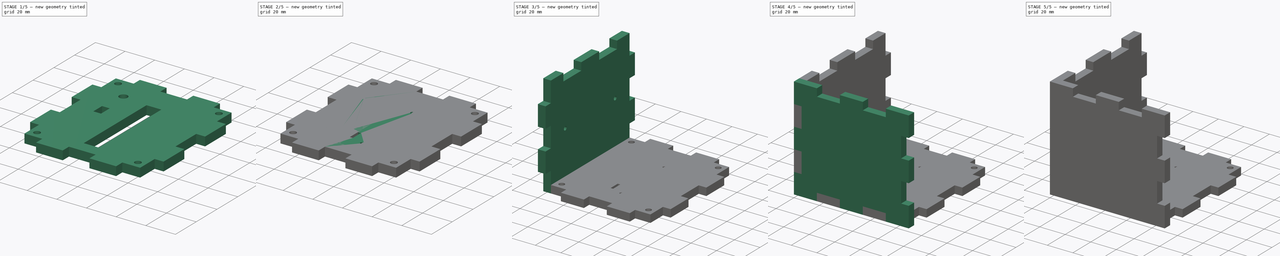
[diagram: build sequence overview — one tinted view per stage of 5, left to right]
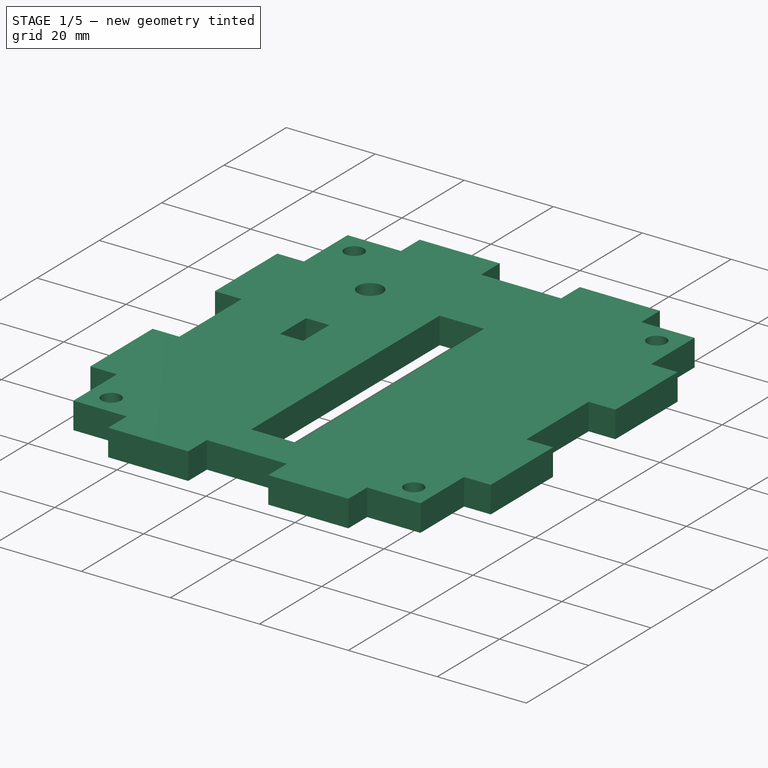
[diagram: stage 1 of 5 — iso view after this stage's code; geometry added in this stage tinted green]
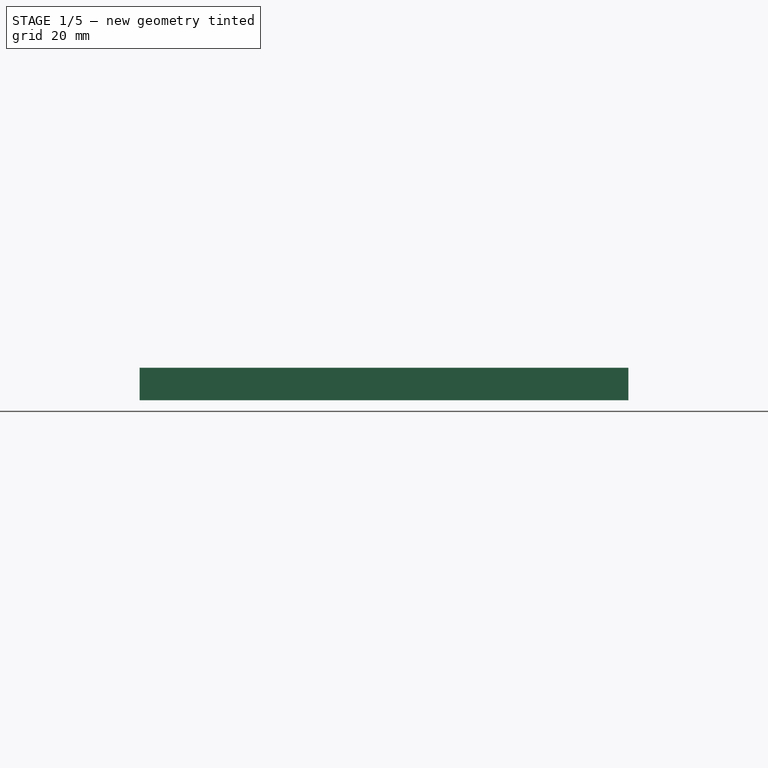
[diagram: stage 1 of 5 — front view after this stage's code; geometry added in this stage tinted green]
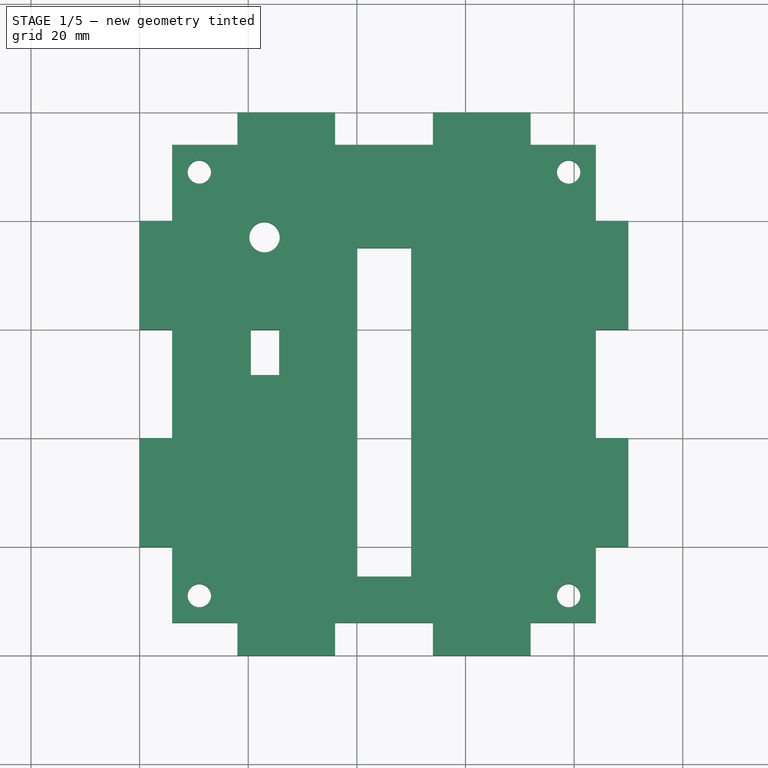
[diagram: stage 1 of 5 — top view after this stage's code; geometry added in this stage tinted green]
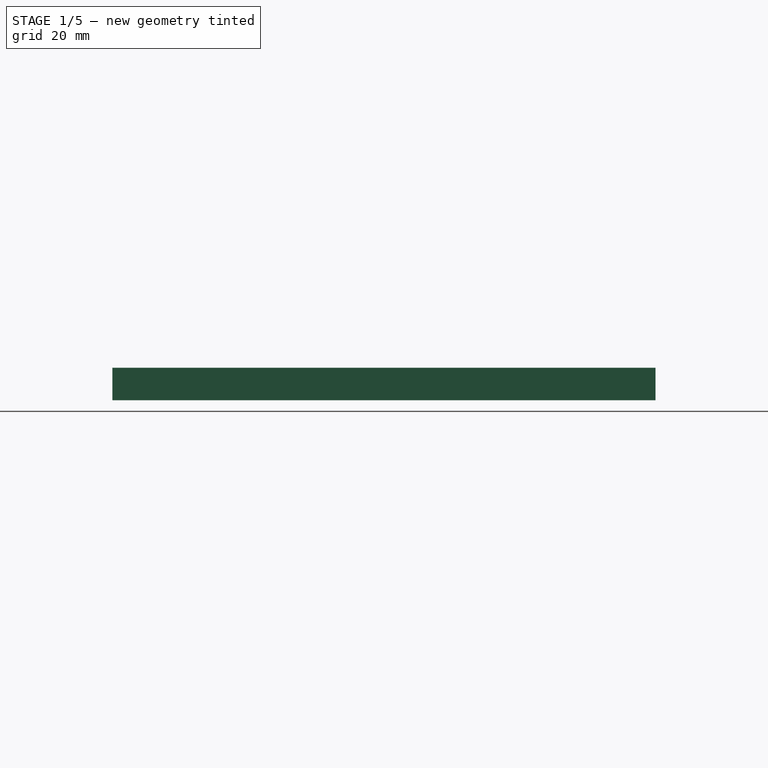
[diagram: stage 1 of 5 — right view after this stage's code; geometry added in this stage tinted green]
FCSTD DOCUMENT  (FreeCAD 0.17R13543 (Git))
Label: controller
License: All rights reserved
LicenseURL: http://en.wikipedia.org/wiki/All_rights_reserved
objects: Sketcher::SketchObject×17, PartDesign::Pocket×11, PartDesign::Pad×6, PartDesign::Body×6, Drawing::FeatureViewPart×6, Drawing::FeaturePage×6
note: 57 computed .brp shape members not serialized (recipe doc carries the construction recipe); baked Part::Feature solids carry a one-line shape summary decoded from their .brp

FEATURE [Sketcher::SketchObject] Sketch013  label="top_base_sketch"
  MapMode = 5
  Support = -> [XY_Plane004]
  sketch-geometry (4):
    g0: LineSegment StartX=0 StartY=100 StartZ=0 EndX=90 EndY=100 EndZ=0
    g1: LineSegment StartX=90 StartY=100 StartZ=0 EndX=90 EndY=0 EndZ=0
    g2: LineSegment StartX=90 StartY=0 StartZ=0 EndX=0 EndY=0 EndZ=0
    g3: LineSegment StartX=0 StartY=0 StartZ=0 EndX=0 EndY=100 EndZ=0
  constraints (11):
    c: Coincident(g0,g1)
    c: Coincident(g1,g2)
    c: Coincident(g2,g3)
    c: Coincident(g3,g0)
    c: Horizontal(g0)
    c: Horizontal(g2)
    c: Vertical(g1)
    c: Vertical(g3)
    c: Coincident(g2,g-1)
    c: DistanceX(g2,g2) = 90
    c: DistanceY(g3,g3) = 100
FEATURE [PartDesign::Pad] Pad005  label="top_base"
  Length = 6
  Length2 = 100
  Profile = -> Sketch013
  Type = 0
FEATURE [Sketcher::SketchObject] Sketch012  label="top_shaped_sketch"
  ExternalGeometry = -> [Pad005]
  MapMode = 5
  Placement = pos=(0,0,0) rot=(1,0,0;3.14159rad)
  Support = -> [Pad005]
  sketch-geometry (52):
    g0: LineSegment StartX=18 StartY=-6 StartZ=0 EndX=0 EndY=-6 EndZ=0
    g1: LineSegment StartX=0 StartY=-6 StartZ=0 EndX=0 EndY=0 EndZ=0
    g2: LineSegment StartX=0 StartY=0 StartZ=0 EndX=18 EndY=0 EndZ=0
    g3: LineSegment StartX=18 StartY=0 StartZ=0 EndX=18 EndY=-6 EndZ=0
    g4: LineSegment StartX=54 StartY=-6 StartZ=0 EndX=36 EndY=-6 EndZ=0
    g5: LineSegment StartX=36 StartY=-6 StartZ=0 EndX=36 EndY=0 EndZ=0
    g6: LineSegment StartX=36 StartY=0 StartZ=0 EndX=54 EndY=0 EndZ=0
    g7: LineSegment StartX=54 StartY=0 StartZ=0 EndX=54 EndY=-6 EndZ=0
    g8: LineSegment StartX=90 StartY=-6 StartZ=0 EndX=72 EndY=-6 EndZ=0
    g9: LineSegment StartX=72 StartY=-6 StartZ=0 EndX=72 EndY=0 EndZ=0
    g10: LineSegment StartX=72 StartY=0 StartZ=0 EndX=90 EndY=0 EndZ=0
    g11: LineSegment StartX=90 StartY=0 StartZ=0 EndX=90 EndY=-6 EndZ=0
    g12: LineSegment StartX=18 StartY=-100 StartZ=0 EndX=0 EndY=-100 EndZ=0
    g13: LineSegment StartX=0 StartY=-100 StartZ=0 EndX=0 EndY=-94 EndZ=0
    g14: LineSegment StartX=0 StartY=-94 StartZ=0 EndX=18 EndY=-94 EndZ=0
    g15: LineSegment StartX=18 StartY=-94 StartZ=0 EndX=18 EndY=-100 EndZ=0
    g16: LineSegment StartX=54 StartY=-100 StartZ=0 EndX=36 EndY=-100 EndZ=0
    g17: LineSegment StartX=36 StartY=-100 StartZ=0 EndX=36 EndY=-94 EndZ=0
    g18: LineSegment StartX=36 StartY=-94 StartZ=0 EndX=54 EndY=-94 EndZ=0
    g19: LineSegment StartX=54 StartY=-94 StartZ=0 EndX=54 EndY=-100 EndZ=0
    g20: LineSegment StartX=90 StartY=-100 StartZ=0 EndX=72 EndY=-100 EndZ=0
    g21: LineSegment StartX=72 StartY=-100 StartZ=0 EndX=72 EndY=-94 EndZ=0
    g22: LineSegment StartX=72 StartY=-94 StartZ=0 EndX=90 EndY=-94 EndZ=0
    g23: LineSegment StartX=90 StartY=-94 StartZ=0 EndX=90 EndY=-100 EndZ=0
    g24: LineSegment StartX=6 StartY=-20 StartZ=0 EndX=0 EndY=-20 EndZ=0
    g25: LineSegment StartX=0 StartY=-20 StartZ=0 EndX=0 EndY=-6 EndZ=0
    g26: LineSegment StartX=0 StartY=-6 StartZ=0 EndX=6 EndY=-6 EndZ=0
    g27: LineSegment StartX=6 StartY=-6 StartZ=0 EndX=6 EndY=-20 EndZ=0
    g28: LineSegment StartX=6 StartY=-60 StartZ=0 EndX=0 EndY=-60 EndZ=0
    g29: LineSegment StartX=0 StartY=-60 StartZ=0 EndX=0 EndY=-40 EndZ=0
    g30: LineSegment StartX=0 StartY=-40 StartZ=0 EndX=6 EndY=-40 EndZ=0
    g31: LineSegment StartX=6 StartY=-40 StartZ=0 EndX=6 EndY=-60 EndZ=0
    g32: LineSegment StartX=6 StartY=-94 StartZ=0 EndX=0 EndY=-94 EndZ=0
    g33: LineSegment StartX=0 StartY=-94 StartZ=0 EndX=0 EndY=-80 EndZ=0
    g34: LineSegment StartX=0 StartY=-80 StartZ=0 EndX=6 EndY=-80 EndZ=0
    g35: LineSegment StartX=6 StartY=-80 StartZ=0 EndX=6 EndY=-94 EndZ=0
    g36: LineSegment StartX=90 StartY=-20 StartZ=0 EndX=84 EndY=-20 EndZ=0
    g37: LineSegment StartX=84 StartY=-20 StartZ=0 EndX=84 EndY=-6 EndZ=0
    g38: LineSegment StartX=84 StartY=-6 StartZ=0 EndX=90 EndY=-6 EndZ=0
    g39: LineSegment StartX=90 StartY=-6 StartZ=0 EndX=90 EndY=-20 EndZ=0
    g40: LineSegment StartX=90 StartY=-60 StartZ=0 EndX=84 EndY=-60 EndZ=0
    g41: LineSegment StartX=84 StartY=-60 StartZ=0 EndX=84 EndY=-40 EndZ=0
    g42: LineSegment StartX=84 StartY=-40 StartZ=0 EndX=90 EndY=-40 EndZ=0
    g43: LineSegment StartX=90 StartY=-40 StartZ=0 EndX=90 EndY=-60 EndZ=0
    g44: LineSegment StartX=90 StartY=-94 StartZ=0 EndX=84 EndY=-94 EndZ=0
    g45: LineSegment StartX=84 StartY=-94 StartZ=0 EndX=84 EndY=-80 EndZ=0
    g46: LineSegment StartX=84 StartY=-80 StartZ=0 EndX=90 EndY=-80 EndZ=0
    g47: LineSegment StartX=90 StartY=-80 StartZ=0 EndX=90 EndY=-94 EndZ=0
    g48: Circle CenterX=11 CenterY=-11 CenterZ=0 NormalX=0 NormalY=0 NormalZ=1 AngleXU=0 Radius=2.15
    g49: Circle CenterX=79 CenterY=-11 CenterZ=0 NormalX=0 NormalY=0 NormalZ=1 AngleXU=0 Radius=2.15
    g50: Circle CenterX=11 CenterY=-89 CenterZ=0 NormalX=0 NormalY=0 NormalZ=1 AngleXU=0 Radius=2.15
    g51: Circle CenterX=79 CenterY=-89 CenterZ=0 NormalX=0 NormalY=0 NormalZ=1 AngleXU=0 Radius=2.15
  constraints (154):
    c: Coincident(g0,g1)
    c: Coincident(g1,g2)
    c: Coincident(g2,g3)
    c: Coincident(g3,g0)
    c: Horizontal(g0)
    c: Horizontal(g2)
    c: Vertical(g1)
    c: Vertical(g3)
    c: Coincident(g1,g-1)
    c: DistanceX(g2,g2) = 18
    c: DistanceY(g3,g3) = 6
    c: Coincident(g4,g5)
    c: Coincident(g5,g6)
    c: Coincident(g6,g7)
    c: Coincident(g7,g4)
    c: Horizontal(g4)
    c: Horizontal(g6)
    c: Vertical(g5)
    c: Vertical(g7)
    c: PointOnObject(g5,g-3)
    c: DistanceX(g2,g5) = 18
    c: DistanceX(g6,g6) = 18
    c: DistanceY(g5,g5) = 6
    c: Coincident(g8,g9)
    c: Coincident(g9,g10)
    c: Coincident(g10,g11)
    c: Coincident(g11,g8)
    c: Horizontal(g8)
    c: Horizontal(g10)
    c: Vertical(g9)
    c: Vertical(g11)
    c: PointOnObject(g9,g-3)
    c: DistanceX(g6,g9) = 18
    c: Coincident(g10,g-4)
    c: DistanceY(g9,g9) = 6
    c: Coincident(g12,g13)
    c: Coincident(g13,g14)
    c: Coincident(g14,g15)
    c: Coincident(g15,g12)
    c: Horizontal(g12)
    c: Horizontal(g14)
    c: Vertical(g13)
    c: Vertical(g15)
    c: Coincident(g12,g-6)
    c: DistanceX(g12,g12) = 18
    c: DistanceY(g15,g15) = 6
    c: Coincident(g16,g17)
    c: Coincident(g17,g18)
    c: Coincident(g18,g19)
    c: Coincident(g19,g16)
    c: Horizontal(g16)
    c: Horizontal(g18)
    c: Vertical(g17)
    c: Vertical(g19)
    c: PointOnObject(g16,g-6)
    c: DistanceX(g12,g16) = 18
    c: DistanceX(g16,g16) = 18
    c: DistanceY(g19,g19) = 6
    c: Coincident(g20,g21)
    c: Coincident(g21,g22)
    c: Coincident(g22,g23)
    c: Coincident(g23,g20)
    c: Horizontal(g20)
    c: Horizontal(g22)
    c: Vertical(g21)
    c: Vertical(g23)
    c: PointOnObject(g20,g-6)
    c: Coincident(g20,g-6)
    c: Distance(g20,g16) = 18
    c: DistanceY(g21,g21) = 6
    c: Coincident(g24,g25)
    c: Coincident(g25,g26)
    c: Coincident(g26,g27)
    c: Coincident(g27,g24)
    c: Horizontal(g24)
    c: Horizontal(g26)
    c: Vertical(g25)
    c: Vertical(g27)
    c: DistanceY(g25,g25) = 14
    c: DistanceX(g24,g24) = 6
    c: Coincident(g28,g29)
    c: Coincident(g29,g30)
    c: Coincident(g30,g31)
    c: Coincident(g31,g28)
    c: Horizontal(g28)
    c: Horizontal(g30)
    c: Vertical(g29)
    c: Vertical(g31)
    c: PointOnObject(g29,g-5)
    c: DistanceY(g29,g24) = 20
    c: DistanceY(g29,g29) = 20
    c: DistanceX(g28,g28) = 6
    c: Coincident(g32,g33)
    c: Coincident(g33,g34)
    c: Coincident(g34,g35)
    c: Coincident(g35,g32)
    c: Horizontal(g32)
    c: Horizontal(g34)
    c: Vertical(g33)
    c: Vertical(g35)
    c: PointOnObject(g33,g-5)
    c: DistanceY(g33,g28) = 20
    c: DistanceX(g34,g34) = 6
    c: Coincident(g36,g37)
    c: Coincident(g37,g38)
    c: Coincident(g38,g39)
    c: Coincident(g39,g36)
    c: Horizontal(g36)
    c: Horizontal(g38)
    c: Vertical(g37)
    c: Vertical(g39)
    c: DistanceY(g37,g37) = 14
    c: DistanceX(g36,g36) = 6
    c: Coincident(g40,g41)
    c: Coincident(g41,g42)
    c: Coincident(g42,g43)
    c: Coincident(g43,g40)
    c: Horizontal(g40)
    c: Horizontal(g42)
    c: Vertical(g41)
    c: Vertical(g43)
    c: PointOnObject(g42,g-4)
    c: DistanceY(g42,g36) = 20
    c: DistanceY(g43,g43) = 20
    c: DistanceX(g40,g40) = 6
    c: Coincident(g44,g45)
    c: Coincident(g45,g46)
    c: Coincident(g46,g47)
    c: Coincident(g47,g44)
    c: Horizontal(g44)
    c: Horizontal(g46)
    c: Vertical(g45)
    c: Vertical(g47)
    c: PointOnObject(g46,g-4)
    c: DistanceY(g45,g45) = 14
    c: DistanceX(g46,g46) = 6
    c: PointOnObject(g-1,g25)
    c: DistanceY(g26,g-1) = 6
    c: DistanceY(g33,g33) = 14
    c: DistanceY(g37,g10) = 6
    c: DistanceX(g37,g10) = 6
    c: DistanceY(g46,g40) = 20
    c: DistanceX(g-1,g48) = 11
    c: DistanceY(g48,g-1) = 11
    c: Radius(g48) = 2.15
    c: DistanceX(g49,g10) = 11
    c: DistanceY(g49,g10) = 11
    c: Equal(g49,g48)
    c: DistanceX(g12,g50) = 11
    c: DistanceY(g12,g50) = 11
    c: Equal(g48,g50)
    c: DistanceX(g51,g20) = 11
    c: DistanceY(g20,g51) = 11
    c: Equal(g51,g48)
FEATURE [PartDesign::Pocket] Pocket007  label="top_shaped"
  BaseFeature = -> Pad005
  Length = 5
  Length2 = 100
  Profile = -> Sketch012
  Type = 1
FEATURE [PartDesign::Body] Body004  label="bottom_part"
  Group = -> [Sketch010,Pad004,Sketch011,Pocket006,Sketch014,Pocket008,Sketch015,Pocket009]
  Origin = -> Origin004
  Tip = -> Pocket009
FEATURE [Drawing::FeatureViewPart] Ortho004  label="bottom_ortho"
  Direction = (0,0,-1)
  HiddenWidth = 0.15
  LineWidth = 0.35
  Rotation = 180
  ShowHiddenLines = false
  ShowSmoothLines = false
  Source = -> Body004
  Tolerance = 0.05
  ViewResult = <blob: 2469 chars omitted>
  Visible = true
  X = 103.5
  Y = 55
FEATURE [Drawing::FeaturePage] Page004  label="bottom_draw"
  Group = -> [Ortho004]
  Template = <path>
FEATURE [Sketcher::SketchObject] Sketch016  label="top_drilled_sketch"
  ExternalGeometry = -> [Pocket007]
  MapMode = 5
  Placement = pos=(0,0,6) rot=(0,0,1;0rad)
  sketch-geometry (9):
    g0: Circle CenterX=23 CenterY=77 CenterZ=0 NormalX=0 NormalY=0 NormalZ=1 AngleXU=0 Radius=2.8
    g1: LineSegment StartX=20.5 StartY=60 StartZ=0 EndX=25.7 EndY=60 EndZ=0
    g2: LineSegment StartX=25.7 StartY=60 StartZ=0 EndX=25.7 EndY=51.6 EndZ=0
    g3: LineSegment StartX=25.7 StartY=51.6 StartZ=0 EndX=20.5 EndY=51.6 EndZ=0
    g4: LineSegment StartX=20.5 StartY=51.6 StartZ=0 EndX=20.5 EndY=60 EndZ=0
    g5: LineSegment StartX=40 StartY=75 StartZ=0 EndX=50 EndY=75 EndZ=0
    g6: LineSegment StartX=50 StartY=75 StartZ=0 EndX=50 EndY=14.5 EndZ=0
    g7: LineSegment StartX=50 StartY=14.5 StartZ=0 EndX=40 EndY=14.5 EndZ=0
    g8: LineSegment StartX=40 StartY=14.5 StartZ=0 EndX=40 EndY=75 EndZ=0
  constraints (27):
    c: DistanceX(g-3,g0) = 23
    c: DistanceY(g0,g-4) = 23
    c: Coincident(g1,g2)
    c: Coincident(g2,g3)
    c: Coincident(g3,g4)
    c: Coincident(g4,g1)
    c: Horizontal(g1)
    c: Horizontal(g3)
    c: Vertical(g2)
    c: Vertical(g4)
    c: DistanceX(g3,g3) = 5.2
    c: DistanceY(g2,g2) = 8.4
    c: Coincident(g5,g6)
    c: Coincident(g6,g7)
    c: Coincident(g7,g8)
    c: Coincident(g8,g5)
    c: Horizontal(g5)
    c: Horizontal(g7)
    c: Vertical(g6)
    c: Vertical(g8)
    c: DistanceX(g7,g7) = 10
    c: DistanceY(g6,g6) = 60.5
    c: DistanceX(g-3,g5) = 40
    c: DistanceY(g5,g-4) = 25
    c: DistanceX(g-3,g1) = 20.5
    c: DistanceY(g1,g-4) = 40
    c: Radius(g0) = 2.8
FEATURE [PartDesign::Pocket] Pocket010  label="top_drilled"
  BaseFeature = -> Pocket007
  Length = 5
  Length2 = 100
  Profile = -> Sketch016
  Type = 1
FEATURE [PartDesign::Body] Body005  label="top_part"
  Group = -> [Sketch013,Pad005,Sketch012,Pocket007,Sketch016,Pocket010]
  Origin = -> Origin005
  Placement = pos=(0,0,74) rot=(0,0,1;0rad)
  Tip = -> Pocket010
FEATURE [Drawing::FeatureViewPart] Ortho005  label="top_ortho"
  Direction = (0,0,-1)
  HiddenWidth = 0.15
  LineWidth = 0.35
  Rotation = 180
  ShowHiddenLines = false
  ShowSmoothLines = false
  Source = -> Body005
  Tolerance = 0.05
  ViewResult = <blob: 2276 chars omitted>
  Visible = true
  X = 103.5
  Y = 55
FEATURE [Drawing::FeaturePage] Page005  label="top_draw"
  Group = -> [Ortho005]
  Template = <path>
note: 6 file-system paths scrubbed to <path> (originals preserved in the JSON sidecar)
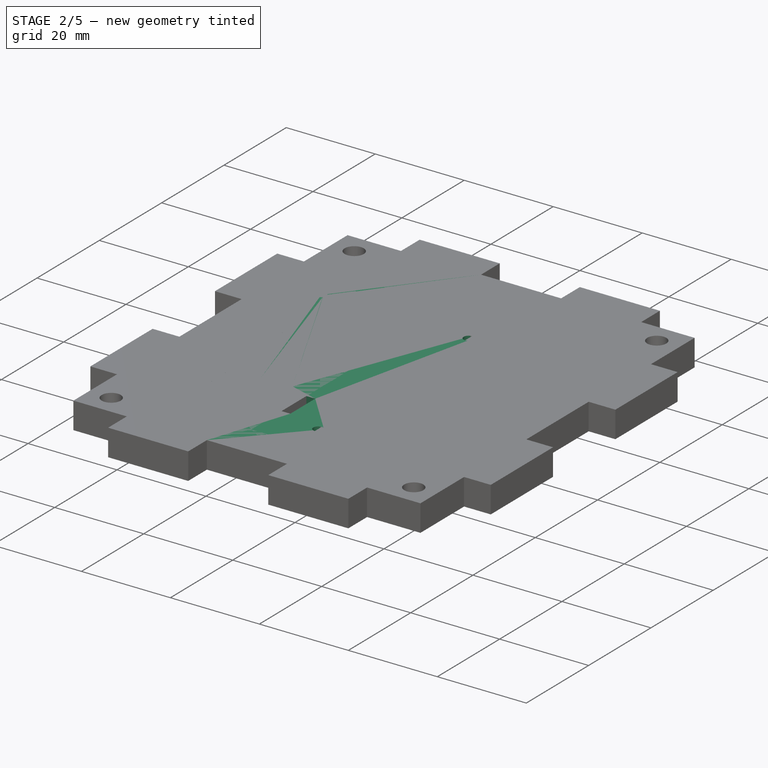
[diagram: stage 2 of 5 — iso view after this stage's code; geometry added in this stage tinted green]
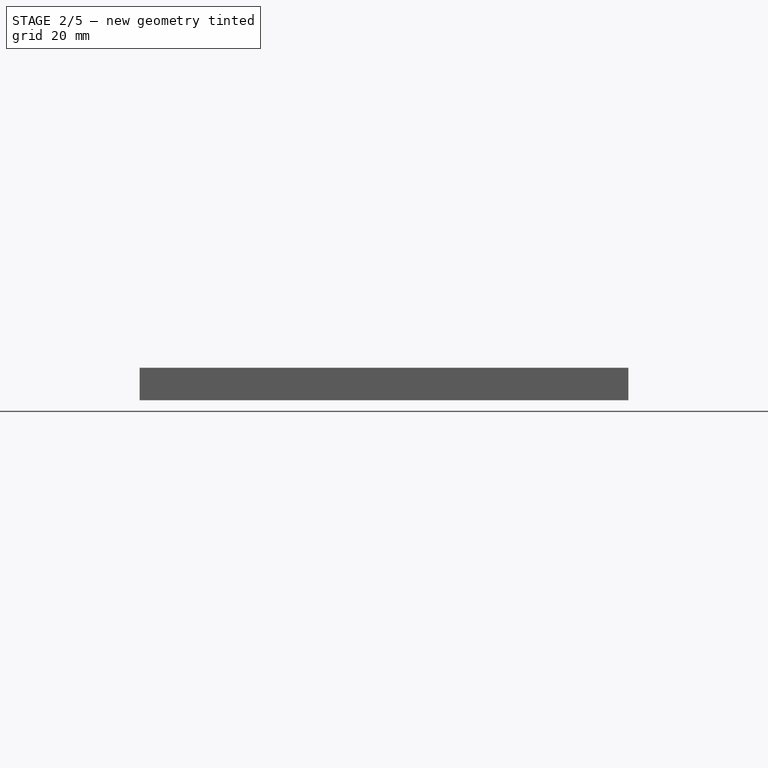
[diagram: stage 2 of 5 — front view after this stage's code; geometry added in this stage tinted green]
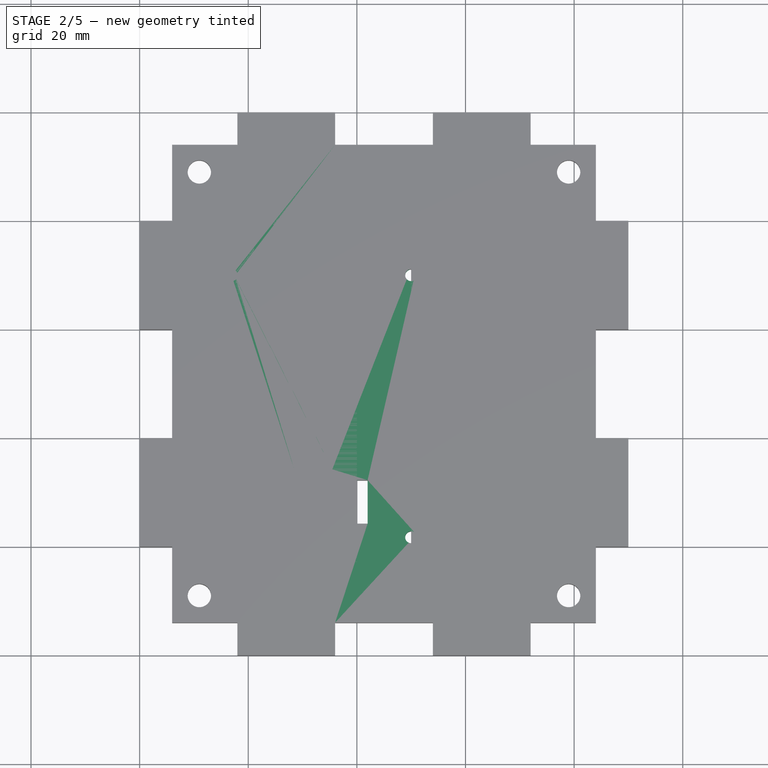
[diagram: stage 2 of 5 — top view after this stage's code; geometry added in this stage tinted green]
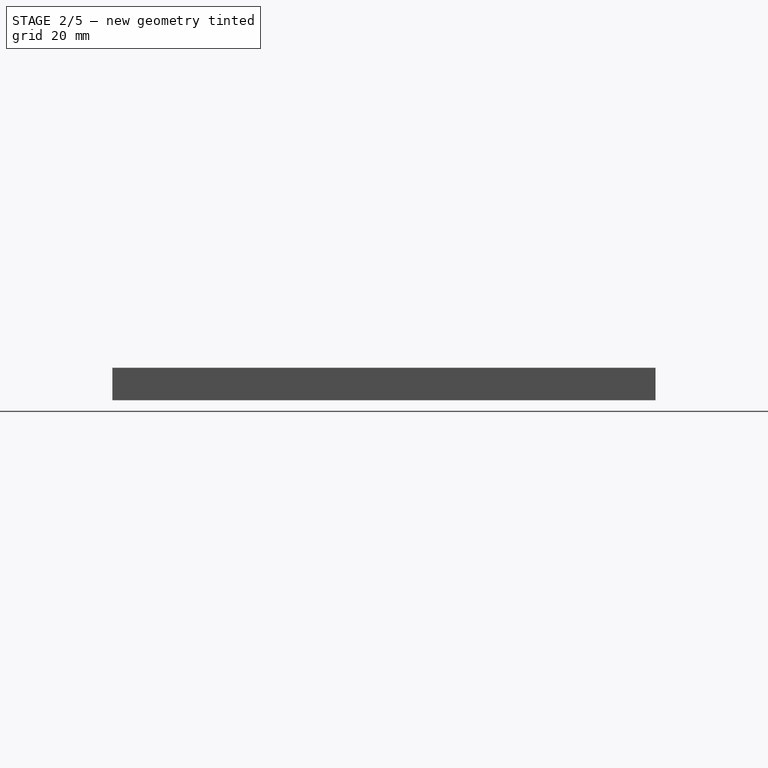
[diagram: stage 2 of 5 — right view after this stage's code; geometry added in this stage tinted green]
FEATURE [PartDesign::Body] Body003  label="right_part"
  Group = -> [Sketch008,Pad003,Sketch007,Pocket004,Sketch009,Pocket005]
  Origin = -> Origin003
  Placement = pos=(84,0,0) rot=(0,0,1;0rad)
  Tip = -> Pocket005
FEATURE [Drawing::FeatureViewPart] Ortho003  label="right_ortho"
  Direction = (-1,0,0)
  HiddenWidth = 0.15
  LineWidth = 0.35
  Rotation = 90
  ShowHiddenLines = false
  ShowSmoothLines = false
  Source = -> Body003
  Tolerance = 0.05
  ViewResult = <blob: 2096 chars omitted>
  Visible = true
  X = 198.5
  Y = 145
FEATURE [Drawing::FeaturePage] Page003  label="right_draw"
  Group = -> [Ortho003]
  Template = <path>
FEATURE [Sketcher::SketchObject] Sketch010  label="bottom_base_sketch"
  MapMode = 5
  Support = -> [XY_Plane004]
  sketch-geometry (4):
    g0: LineSegment StartX=0 StartY=100 StartZ=0 EndX=90 EndY=100 EndZ=0
    g1: LineSegment StartX=90 StartY=100 StartZ=0 EndX=90 EndY=0 EndZ=0
    g2: LineSegment StartX=90 StartY=0 StartZ=0 EndX=0 EndY=0 EndZ=0
    g3: LineSegment StartX=0 StartY=0 StartZ=0 EndX=0 EndY=100 EndZ=0
  constraints (11):
    c: Coincident(g0,g1)
    c: Coincident(g1,g2)
    c: Coincident(g2,g3)
    c: Coincident(g3,g0)
    c: Horizontal(g0)
    c: Horizontal(g2)
    c: Vertical(g1)
    c: Vertical(g3)
    c: Coincident(g2,g-1)
    c: DistanceX(g2,g2) = 90
    c: DistanceY(g3,g3) = 100
FEATURE [PartDesign::Pad] Pad004  label="bottom_base"
  Length = 6
  Length2 = 100
  Profile = -> Sketch010
  Type = 0
FEATURE [Sketcher::SketchObject] Sketch011  label="bottom_shaped_sketch"
  ExternalGeometry = -> [Pad004]
  MapMode = 5
  Placement = pos=(0,0,0) rot=(1,0,0;3.14159rad)
  Support = -> [Pad004]
  sketch-geometry (52):
    g0: LineSegment StartX=18 StartY=-6 StartZ=0 EndX=0 EndY=-6 EndZ=0
    g1: LineSegment StartX=0 StartY=-6 StartZ=0 EndX=0 EndY=0 EndZ=0
    g2: LineSegment StartX=0 StartY=0 StartZ=0 EndX=18 EndY=0 EndZ=0
    g3: LineSegment StartX=18 StartY=0 StartZ=0 EndX=18 EndY=-6 EndZ=0
    g4: LineSegment StartX=54 StartY=-6 StartZ=0 EndX=36 EndY=-6 EndZ=0
    g5: LineSegment StartX=36 StartY=-6 StartZ=0 EndX=36 EndY=0 EndZ=0
    g6: LineSegment StartX=36 StartY=0 StartZ=0 EndX=54 EndY=0 EndZ=0
    g7: LineSegment StartX=54 StartY=0 StartZ=0 EndX=54 EndY=-6 EndZ=0
    g8: LineSegment StartX=90 StartY=-6 StartZ=0 EndX=72 EndY=-6 EndZ=0
    g9: LineSegment StartX=72 StartY=-6 StartZ=0 EndX=72 EndY=0 EndZ=0
    g10: LineSegment StartX=72 StartY=0 StartZ=0 EndX=90 EndY=0 EndZ=0
    g11: LineSegment StartX=90 StartY=0 StartZ=0 EndX=90 EndY=-6 EndZ=0
    g12: LineSegment StartX=18 StartY=-100 StartZ=0 EndX=0 EndY=-100 EndZ=0
    g13: LineSegment StartX=0 StartY=-100 StartZ=0 EndX=0 EndY=-94 EndZ=0
    g14: LineSegment StartX=0 StartY=-94 StartZ=0 EndX=18 EndY=-94 EndZ=0
    g15: LineSegment StartX=18 StartY=-94 StartZ=0 EndX=18 EndY=-100 EndZ=0
    g16: LineSegment StartX=54 StartY=-100 StartZ=0 EndX=36 EndY=-100 EndZ=0
    g17: LineSegment StartX=36 StartY=-100 StartZ=0 EndX=36 EndY=-94 EndZ=0
    g18: LineSegment StartX=36 StartY=-94 StartZ=0 EndX=54 EndY=-94 EndZ=0
    g19: LineSegment StartX=54 StartY=-94 StartZ=0 EndX=54 EndY=-100 EndZ=0
    g20: LineSegment StartX=90 StartY=-100 StartZ=0 EndX=72 EndY=-100 EndZ=0
    g21: LineSegment StartX=72 StartY=-100 StartZ=0 EndX=72 EndY=-94 EndZ=0
    g22: LineSegment StartX=72 StartY=-94 StartZ=0 EndX=90 EndY=-94 EndZ=0
    g23: LineSegment StartX=90 StartY=-94 StartZ=0 EndX=90 EndY=-100 EndZ=0
    g24: LineSegment StartX=6 StartY=-20 StartZ=0 EndX=0 EndY=-20 EndZ=0
    g25: LineSegment StartX=0 StartY=-20 StartZ=0 EndX=0 EndY=-6 EndZ=0
    g26: LineSegment StartX=0 StartY=-6 StartZ=0 EndX=6 EndY=-6 EndZ=0
    g27: LineSegment StartX=6 StartY=-6 StartZ=0 EndX=6 EndY=-20 EndZ=0
    g28: LineSegment StartX=6 StartY=-60 StartZ=0 EndX=0 EndY=-60 EndZ=0
    g29: LineSegment StartX=0 StartY=-60 StartZ=0 EndX=0 EndY=-40 EndZ=0
    g30: LineSegment StartX=0 StartY=-40 StartZ=0 EndX=6 EndY=-40 EndZ=0
    g31: LineSegment StartX=6 StartY=-40 StartZ=0 EndX=6 EndY=-60 EndZ=0
    g32: LineSegment StartX=6 StartY=-94 StartZ=0 EndX=0 EndY=-94 EndZ=0
    g33: LineSegment StartX=0 StartY=-94 StartZ=0 EndX=0 EndY=-80 EndZ=0
    g34: LineSegment StartX=0 StartY=-80 StartZ=0 EndX=6 EndY=-80 EndZ=0
    g35: LineSegment StartX=6 StartY=-80 StartZ=0 EndX=6 EndY=-94 EndZ=0
    g36: LineSegment StartX=90 StartY=-20 StartZ=0 EndX=84 EndY=-20 EndZ=0
    g37: LineSegment StartX=84 StartY=-20 StartZ=0 EndX=84 EndY=-6 EndZ=0
    g38: LineSegment StartX=84 StartY=-6 StartZ=0 EndX=90 EndY=-6 EndZ=0
    g39: LineSegment StartX=90 StartY=-6 StartZ=0 EndX=90 EndY=-20 EndZ=0
    g40: LineSegment StartX=90 StartY=-60 StartZ=0 EndX=84 EndY=-60 EndZ=0
    g41: LineSegment StartX=84 StartY=-60 StartZ=0 EndX=84 EndY=-40 EndZ=0
    g42: LineSegment StartX=84 StartY=-40 StartZ=0 EndX=90 EndY=-40 EndZ=0
    g43: LineSegment StartX=90 StartY=-40 StartZ=0 EndX=90 EndY=-60 EndZ=0
    g44: LineSegment StartX=90 StartY=-94 StartZ=0 EndX=84 EndY=-94 EndZ=0
    g45: LineSegment StartX=84 StartY=-94 StartZ=0 EndX=84 EndY=-80 EndZ=0
    g46: LineSegment StartX=84 StartY=-80 StartZ=0 EndX=90 EndY=-80 EndZ=0
    g47: LineSegment StartX=90 StartY=-80 StartZ=0 EndX=90 EndY=-94 EndZ=0
    g48: Circle CenterX=11 CenterY=-11 CenterZ=0 NormalX=0 NormalY=0 NormalZ=1 AngleXU=0 Radius=2.15
    g49: Circle CenterX=79 CenterY=-11 CenterZ=0 NormalX=0 NormalY=0 NormalZ=1 AngleXU=0 Radius=2.15
    g50: Circle CenterX=11 CenterY=-89 CenterZ=0 NormalX=0 NormalY=0 NormalZ=1 AngleXU=0 Radius=2.15
    g51: Circle CenterX=79 CenterY=-89 CenterZ=0 NormalX=0 NormalY=0 NormalZ=1 AngleXU=0 Radius=2.15
  constraints (154):
    c: Coincident(g0,g1)
    c: Coincident(g1,g2)
    c: Coincident(g2,g3)
    c: Coincident(g3,g0)
    c: Horizontal(g0)
    c: Horizontal(g2)
    c: Vertical(g1)
    c: Vertical(g3)
    c: Coincident(g1,g-1)
    c: DistanceX(g2,g2) = 18
    c: DistanceY(g3,g3) = 6
    c: Coincident(g4,g5)
    c: Coincident(g5,g6)
    c: Coincident(g6,g7)
    c: Coincident(g7,g4)
    c: Horizontal(g4)
    c: Horizontal(g6)
    c: Vertical(g5)
    c: Vertical(g7)
    c: PointOnObject(g5,g-3)
    c: DistanceX(g2,g5) = 18
    c: DistanceX(g6,g6) = 18
    c: DistanceY(g5,g5) = 6
    c: Coincident(g8,g9)
    c: Coincident(g9,g10)
    c: Coincident(g10,g11)
    c: Coincident(g11,g8)
    c: Horizontal(g8)
    c: Horizontal(g10)
    c: Vertical(g9)
    c: Vertical(g11)
    c: PointOnObject(g9,g-3)
    c: DistanceX(g6,g9) = 18
    c: Coincident(g10,g-4)
    c: DistanceY(g9,g9) = 6
    c: Coincident(g12,g13)
    c: Coincident(g13,g14)
    c: Coincident(g14,g15)
    c: Coincident(g15,g12)
    c: Horizontal(g12)
    c: Horizontal(g14)
    c: Vertical(g13)
    c: Vertical(g15)
    c: Coincident(g12,g-6)
    c: DistanceX(g12,g12) = 18
    c: DistanceY(g15,g15) = 6
    c: Coincident(g16,g17)
    c: Coincident(g17,g18)
    c: Coincident(g18,g19)
    c: Coincident(g19,g16)
    c: Horizontal(g16)
    c: Horizontal(g18)
    c: Vertical(g17)
    c: Vertical(g19)
    c: PointOnObject(g16,g-6)
    c: DistanceX(g12,g16) = 18
    c: DistanceX(g16,g16) = 18
    c: DistanceY(g19,g19) = 6
    c: Coincident(g20,g21)
    c: Coincident(g21,g22)
    c: Coincident(g22,g23)
    c: Coincident(g23,g20)
    c: Horizontal(g20)
    c: Horizontal(g22)
    c: Vertical(g21)
    c: Vertical(g23)
    c: PointOnObject(g20,g-6)
    c: Coincident(g20,g-6)
    c: Distance(g20,g16) = 18
    c: DistanceY(g21,g21) = 6
    c: Coincident(g24,g25)
    c: Coincident(g25,g26)
    c: Coincident(g26,g27)
    c: Coincident(g27,g24)
    c: Horizontal(g24)
    c: Horizontal(g26)
    c: Vertical(g25)
    c: Vertical(g27)
    c: DistanceY(g25,g25) = 14
    c: DistanceX(g24,g24) = 6
    c: Coincident(g28,g29)
    c: Coincident(g29,g30)
    c: Coincident(g30,g31)
    c: Coincident(g31,g28)
    c: Horizontal(g28)
    c: Horizontal(g30)
    c: Vertical(g29)
    c: Vertical(g31)
    c: PointOnObject(g29,g-5)
    c: DistanceY(g29,g24) = 20
    c: DistanceY(g29,g29) = 20
    c: DistanceX(g28,g28) = 6
    c: Coincident(g32,g33)
    c: Coincident(g33,g34)
    c: Coincident(g34,g35)
    c: Coincident(g35,g32)
    c: Horizontal(g32)
    c: Horizontal(g34)
    c: Vertical(g33)
    c: Vertical(g35)
    c: PointOnObject(g33,g-5)
    c: DistanceY(g33,g28) = 20
    c: DistanceX(g34,g34) = 6
    c: Coincident(g36,g37)
    c: Coincident(g37,g38)
    c: Coincident(g38,g39)
    c: Coincident(g39,g36)
    c: Horizontal(g36)
    c: Horizontal(g38)
    c: Vertical(g37)
    c: Vertical(g39)
    c: DistanceY(g37,g37) = 14
    c: DistanceX(g36,g36) = 6
    c: Coincident(g40,g41)
    c: Coincident(g41,g42)
    c: Coincident(g42,g43)
    c: Coincident(g43,g40)
    c: Horizontal(g40)
    c: Horizontal(g42)
    c: Vertical(g41)
    c: Vertical(g43)
    c: PointOnObject(g42,g-4)
    c: DistanceY(g42,g36) = 20
    c: DistanceY(g43,g43) = 20
    c: DistanceX(g40,g40) = 6
    c: Coincident(g44,g45)
    c: Coincident(g45,g46)
    c: Coincident(g46,g47)
    c: Coincident(g47,g44)
    c: Horizontal(g44)
    c: Horizontal(g46)
    c: Vertical(g45)
    c: Vertical(g47)
    c: PointOnObject(g46,g-4)
    c: DistanceY(g45,g45) = 14
    c: DistanceX(g46,g46) = 6
    c: PointOnObject(g-1,g25)
    c: DistanceY(g26,g-1) = 6
    c: DistanceY(g33,g33) = 14
    c: DistanceY(g37,g10) = 6
    c: DistanceX(g37,g10) = 6
    c: DistanceY(g46,g40) = 20
    c: DistanceX(g-1,g48) = 11
    c: DistanceY(g48,g-1) = 11
    c: Radius(g48) = 2.15
    c: DistanceX(g49,g10) = 11
    c: DistanceY(g49,g10) = 11
    c: Equal(g49,g48)
    c: DistanceX(g12,g50) = 11
    c: DistanceY(g12,g50) = 11
    c: Equal(g48,g50)
    c: DistanceX(g51,g20) = 11
    c: DistanceY(g20,g51) = 11
    c: Equal(g51,g48)
FEATURE [PartDesign::Pocket] Pocket006  label="bottom_shaped"
  BaseFeature = -> Pad004
  Length = 5
  Length2 = 100
  Profile = -> Sketch011
  Type = 1
FEATURE [Sketcher::SketchObject] Sketch014  label="bottom_board_sketch"
  MapMode = 5
  Placement = pos=(0,0,0) rot=(1,0,0;3.14159rad)
  Support = -> [Pocket006]
  sketch-geometry (4):
    g0: Circle CenterX=50 CenterY=-70 CenterZ=0 NormalX=0 NormalY=0 NormalZ=1 AngleXU=0 Radius=1.1
    g1: Circle CenterX=16.98 CenterY=-70 CenterZ=0 NormalX=0 NormalY=0 NormalZ=1 AngleXU=0 Radius=1.1
    g2: Circle CenterX=50 CenterY=-21.74 CenterZ=0 NormalX=0 NormalY=0 NormalZ=1 AngleXU=0 Radius=1.1
    g3: Circle CenterX=16.98 CenterY=-21.74 CenterZ=0 NormalX=0 NormalY=0 NormalZ=1 AngleXU=0 Radius=1.1
  constraints (12):
    c: Equal(g0,g1)
    c: Equal(g0,g2)
    c: Equal(g0,g3)
    c: DistanceX(g1,g0) = 33.02
    c: DistanceY(g0,g2) = 48.26
    c: DistanceX(g3,g0) = 33.02
    c: DistanceY(g0,g3) = 48.26
    c: DistanceY(g0,g1) = 0
    c: DistanceX(g2,g0) = 0
    c: Radius(g0) = 1.1
    c: DistanceY(g0,g-1) = 70
    c: DistanceX(g-1,g0) = 50
FEATURE [PartDesign::Pocket] Pocket008  label="bottom_board"
  BaseFeature = -> Pocket006
  Length = 5
  Length2 = 100
  Profile = -> Sketch014
  Type = 1
FEATURE [Sketcher::SketchObject] Sketch015  label="bottom_idc_sketch"
  ExternalGeometry = -> [Pocket008]
  MapMode = 5
  Placement = pos=(0,0,0) rot=(1,0,0;3.14159rad)
  Support = -> [Pocket008]
  sketch-geometry (8):
    g0: LineSegment StartX=21.98 StartY=-32.24 StartZ=0 EndX=21.98 EndY=-24.24 EndZ=0
    g1: LineSegment StartX=21.98 StartY=-24.24 StartZ=0 EndX=41.98 EndY=-24.24 EndZ=0
    g2: LineSegment StartX=41.98 StartY=-24.24 StartZ=0 EndX=41.98 EndY=-32.24 EndZ=0
    g3: LineSegment StartX=35.48 StartY=-34.24 StartZ=0 EndX=28.48 EndY=-34.24 EndZ=0
    g4: LineSegment StartX=28.48 StartY=-34.24 StartZ=0 EndX=28.48 EndY=-32.24 EndZ=0
    g5: LineSegment StartX=35.48 StartY=-32.24 StartZ=0 EndX=35.48 EndY=-34.24 EndZ=0
    g6: LineSegment StartX=21.98 StartY=-32.24 StartZ=0 EndX=28.48 EndY=-32.24 EndZ=0
    g7: LineSegment StartX=41.98 StartY=-32.24 StartZ=0 EndX=35.48 EndY=-32.24 EndZ=0
  constraints (24):
    c: Coincident(g0,g1)
    c: Coincident(g1,g2)
    c: Horizontal(g1)
    c: Vertical(g0)
    c: Vertical(g2)
    c: Coincident(g3,g4)
    c: Coincident(g5,g3)
    c: Horizontal(g3)
    c: Vertical(g4)
    c: Vertical(g5)
    c: DistanceX(g1,g1) = 20
    c: DistanceY(g2,g2) = 8
    c: DistanceY(g5,g5) = 2
    c: DistanceX(g3,g3) = 7
    c: DistanceY(g0,g-3) = 2.5
    c: DistanceX(g5,g2) = 6.5
    c: Coincident(g6,g0)
    c: Coincident(g6,g4)
    c: Horizontal(g6)
    c: Coincident(g7,g2)
    c: Coincident(g7,g5)
    c: Horizontal(g7)
    c: Equal(g4,g5)
    c: DistanceX(g-7,g0) = 5
FEATURE [PartDesign::Pocket] Pocket009  label="bottom_idc"
  BaseFeature = -> Pocket008
  Length = 5
  Length2 = 100
  Profile = -> Sketch015
  Type = 1
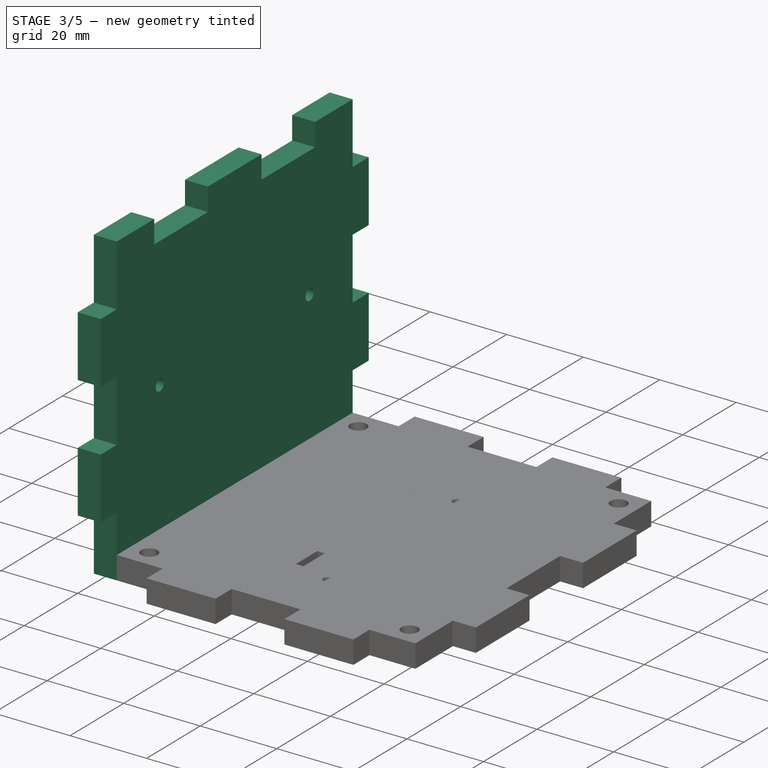
[diagram: stage 3 of 5 — iso view after this stage's code; geometry added in this stage tinted green]
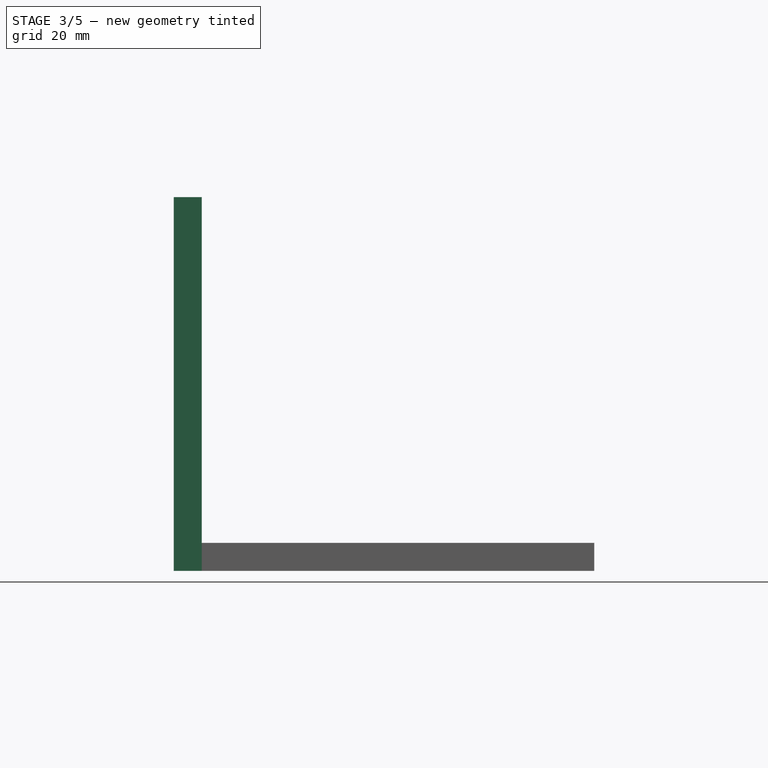
[diagram: stage 3 of 5 — front view after this stage's code; geometry added in this stage tinted green]
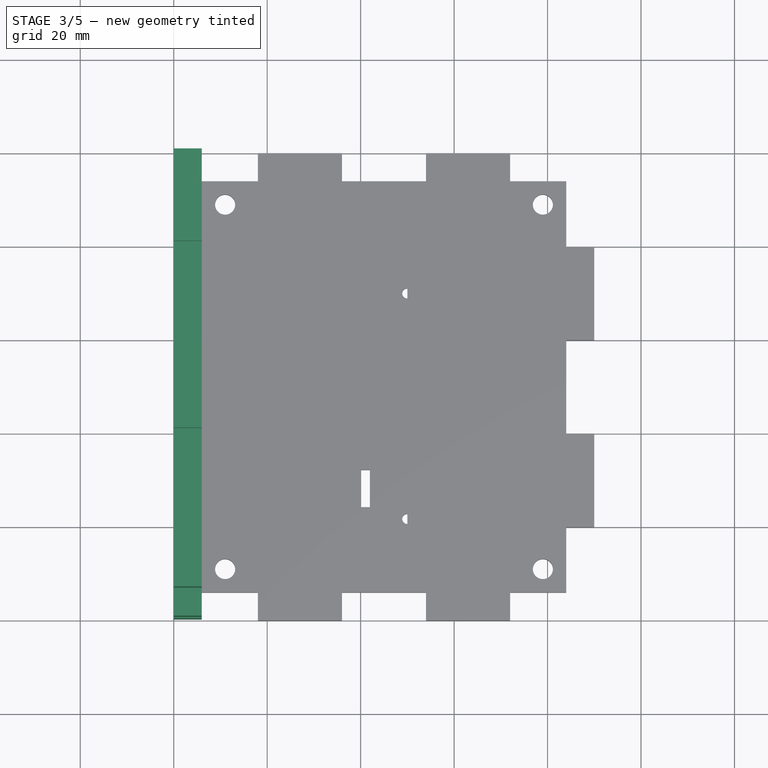
[diagram: stage 3 of 5 — top view after this stage's code; geometry added in this stage tinted green]
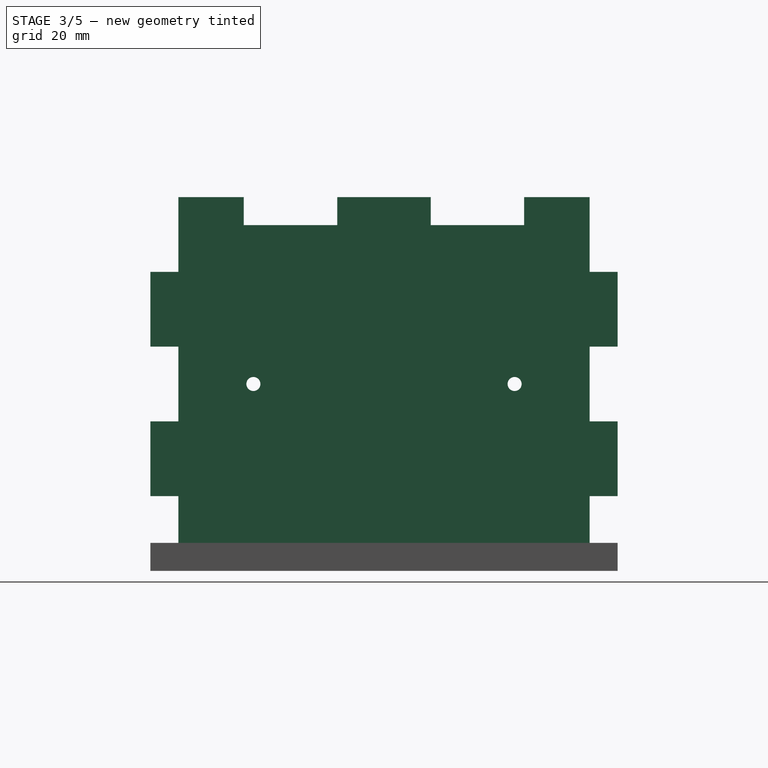
[diagram: stage 3 of 5 — right view after this stage's code; geometry added in this stage tinted green]
FEATURE [PartDesign::Body] Body002  label="left_part"
  Group = -> [Sketch005,Pad002,Sketch006,Pocket003]
  Origin = -> Origin002
  Tip = -> Pocket003
FEATURE [Drawing::FeatureViewPart] Ortho002  label="left_ortho"
  Direction = (-1,0,0)
  HiddenWidth = 0.15
  LineWidth = 0.35
  Rotation = 90
  ShowHiddenLines = false
  ShowSmoothLines = false
  Source = -> Body002
  Tolerance = 0.05
  ViewResult = <blob: 2003 chars omitted>
  Visible = true
  X = 198.5
  Y = 145
FEATURE [Drawing::FeaturePage] Page002  label="left_draw"
  Group = -> [Ortho002]
  Template = <path>
FEATURE [Sketcher::SketchObject] Sketch008  label="right_base_sketch"
  MapMode = 5
  Placement = pos=(0,0,0) rot=(0.57735,0.57735,0.57735;2.0944rad)
  Support = -> [YZ_Plane003]
  sketch-geometry (4):
    g0: LineSegment StartX=0 StartY=80 StartZ=0 EndX=100 EndY=80 EndZ=0
    g1: LineSegment StartX=100 StartY=80 StartZ=0 EndX=100 EndY=0 EndZ=0
    g2: LineSegment StartX=100 StartY=0 StartZ=0 EndX=0 EndY=0 EndZ=0
    g3: LineSegment StartX=0 StartY=0 StartZ=0 EndX=0 EndY=80 EndZ=0
  constraints (11):
    c: Coincident(g0,g1)
    c: Coincident(g1,g2)
    c: Coincident(g2,g3)
    c: Coincident(g3,g0)
    c: Horizontal(g0)
    c: Horizontal(g2)
    c: Vertical(g1)
    c: Vertical(g3)
    c: Coincident(g2,g-1)
    c: DistanceY(g3,g3) = 80
    c: DistanceX(g2,g2) = 100
FEATURE [PartDesign::Pad] Pad003  label="right_base"
  Length = 6
  Length2 = 100
  Placement = pos=(0,0,0) rot=(0.57735,0.57735,0.57735;2.0944rad)
  Profile = -> Sketch008
  Type = 0
FEATURE [Sketcher::SketchObject] Sketch007  label="right_shaped_sketch"
  ExternalGeometry = -> [Pad003]
  MapMode = 5
  Placement = pos=(0,0,0) rot=(0.57735,0.57735,-0.57735;4.18879rad)
  Support = -> [Pad003]
  sketch-geometry (40):
    g0: LineSegment StartX=6 StartY=-16 StartZ=0 EndX=0 EndY=-16 EndZ=0
    g1: LineSegment StartX=0 StartY=-16 StartZ=0 EndX=0 EndY=0 EndZ=0
    g2: LineSegment StartX=0 StartY=0 StartZ=0 EndX=6 EndY=0 EndZ=0
    g3: LineSegment StartX=6 StartY=0 StartZ=0 EndX=6 EndY=-16 EndZ=0
    g4: LineSegment StartX=6 StartY=-48 StartZ=0 EndX=0 EndY=-48 EndZ=0
    g5: LineSegment StartX=0 StartY=-48 StartZ=0 EndX=0 EndY=-32 EndZ=0
    g6: LineSegment StartX=0 StartY=-32 StartZ=0 EndX=6 EndY=-32 EndZ=0
    g7: LineSegment StartX=6 StartY=-32 StartZ=0 EndX=6 EndY=-48 EndZ=0
    g8: LineSegment StartX=6 StartY=-80 StartZ=0 EndX=0 EndY=-80 EndZ=0
    g9: LineSegment StartX=0 StartY=-80 StartZ=0 EndX=0 EndY=-64 EndZ=0
    g10: LineSegment StartX=0 StartY=-64 StartZ=0 EndX=6 EndY=-64 EndZ=0
    g11: LineSegment StartX=6 StartY=-64 StartZ=0 EndX=6 EndY=-80 EndZ=0
    g12: LineSegment StartX=100 StartY=-16 StartZ=0 EndX=94 EndY=-16 EndZ=0
    g13: LineSegment StartX=94 StartY=-16 StartZ=0 EndX=94 EndY=0 EndZ=0
    g14: LineSegment StartX=94 StartY=0 StartZ=0 EndX=100 EndY=0 EndZ=0
    g15: LineSegment StartX=100 StartY=0 StartZ=0 EndX=100 EndY=-16 EndZ=0
    g16: LineSegment StartX=100 StartY=-48 StartZ=0 EndX=94 EndY=-48 EndZ=0
    g17: LineSegment StartX=94 StartY=-48 StartZ=0 EndX=94 EndY=-32 EndZ=0
    g18: LineSegment StartX=94 StartY=-32 StartZ=0 EndX=100 EndY=-32 EndZ=0
    g19: LineSegment StartX=100 StartY=-32 StartZ=0 EndX=100 EndY=-48 EndZ=0
    g20: LineSegment StartX=100 StartY=-80 StartZ=0 EndX=94 EndY=-80 EndZ=0
    g21: LineSegment StartX=94 StartY=-80 StartZ=0 EndX=94 EndY=-64 EndZ=0
    g22: LineSegment StartX=94 StartY=-64 StartZ=0 EndX=100 EndY=-64 EndZ=0
    g23: LineSegment StartX=100 StartY=-64 StartZ=0 EndX=100 EndY=-80 EndZ=0
    g24: LineSegment StartX=20 StartY=-74 StartZ=0 EndX=40 EndY=-74 EndZ=0
    g25: LineSegment StartX=40 StartY=-74 StartZ=0 EndX=40 EndY=-80 EndZ=0
    g26: LineSegment StartX=40 StartY=-80 StartZ=0 EndX=20 EndY=-80 EndZ=0
    g27: LineSegment StartX=20 StartY=-80 StartZ=0 EndX=20 EndY=-74 EndZ=0
    g28: LineSegment StartX=80 StartY=-80 StartZ=0 EndX=60 EndY=-80 EndZ=0
    g29: LineSegment StartX=60 StartY=-80 StartZ=0 EndX=60 EndY=-74 EndZ=0
    g30: LineSegment StartX=60 StartY=-74 StartZ=0 EndX=80 EndY=-74 EndZ=0
    g31: LineSegment StartX=80 StartY=-74 StartZ=0 EndX=80 EndY=-80 EndZ=0
    g32: LineSegment StartX=40 StartY=-6 StartZ=0 EndX=20 EndY=-6 EndZ=0
    g33: LineSegment StartX=20 StartY=-6 StartZ=0 EndX=20 EndY=0 EndZ=0
    g34: LineSegment StartX=20 StartY=0 StartZ=0 EndX=40 EndY=0 EndZ=0
    g35: LineSegment StartX=40 StartY=0 StartZ=0 EndX=40 EndY=-6 EndZ=0
    g36: LineSegment StartX=80 StartY=-6 StartZ=0 EndX=60 EndY=-6 EndZ=0
    g37: LineSegment StartX=60 StartY=-6 StartZ=0 EndX=60 EndY=0 EndZ=0
    g38: LineSegment StartX=60 StartY=0 StartZ=0 EndX=80 EndY=0 EndZ=0
    g39: LineSegment StartX=80 StartY=0 StartZ=0 EndX=80 EndY=-6 EndZ=0
  constraints (117):
    c: Coincident(g0,g1)
    c: Coincident(g1,g2)
    c: Coincident(g2,g3)
    c: Coincident(g3,g0)
    c: Horizontal(g0)
    c: Horizontal(g2)
    c: Vertical(g1)
    c: Vertical(g3)
    c: Coincident(g1,g-1)
    c: DistanceY(g1,g1) = 16
    c: DistanceX(g2,g2) = 6
    c: Coincident(g4,g5)
    c: Coincident(g5,g6)
    c: Coincident(g6,g7)
    c: Coincident(g7,g4)
    c: Horizontal(g4)
    c: Horizontal(g6)
    c: Vertical(g5)
    c: Vertical(g7)
    c: PointOnObject(g5,g-3)
    c: DistanceY(g5,g0) = 16
    c: DistanceY(g5,g5) = 16
    c: DistanceX(g6,g6) = 6
    c: Coincident(g8,g9)
    c: Coincident(g9,g10)
    c: Coincident(g10,g11)
    c: Coincident(g11,g8)
    c: Horizontal(g8)
    c: Horizontal(g10)
    c: Vertical(g9)
    c: Vertical(g11)
    c: PointOnObject(g9,g-3)
    c: Coincident(g8,g-3)
    c: DistanceY(g9,g4) = 16
    c: DistanceX(g10,g10) = 6
    c: Coincident(g12,g13)
    c: Coincident(g13,g14)
    c: Coincident(g14,g15)
    c: Coincident(g15,g12)
    c: Horizontal(g12)
    c: Horizontal(g14)
    c: Vertical(g13)
    c: Vertical(g15)
    c: Coincident(g14,g-5)
    c: DistanceY(g15,g15) = 16
    c: DistanceX(g14,g14) = 6
    c: Coincident(g16,g17)
    c: Coincident(g17,g18)
    c: Coincident(g18,g19)
    c: Coincident(g19,g16)
    c: Horizontal(g16)
    c: Horizontal(g18)
    c: Vertical(g17)
    c: Vertical(g19)
    c: PointOnObject(g18,g-5)
    c: DistanceY(g18,g12) = 16
    c: DistanceY(g19,g19) = 16
    c: DistanceX(g18,g18) = 6
    c: Coincident(g20,g21)
    c: Coincident(g21,g22)
    c: Coincident(g22,g23)
    c: Coincident(g23,g20)
    c: Horizontal(g20)
    c: Horizontal(g22)
    c: Vertical(g21)
    c: Vertical(g23)
    c: Coincident(g20,g-6)
    c: DistanceY(g22,g16) = 16
    c: DistanceX(g22,g22) = 6
    c: Coincident(g24,g25)
    c: Coincident(g25,g26)
    c: Coincident(g26,g27)
    c: Coincident(g27,g24)
    c: Horizontal(g24)
    c: Horizontal(g26)
    c: Vertical(g25)
    c: Vertical(g27)
    c: PointOnObject(g26,g-6)
    c: DistanceX(g8,g26) = 20
    c: DistanceX(g26,g26) = 20
    c: DistanceY(g27,g27) = 6
    c: Coincident(g28,g29)
    c: Coincident(g29,g30)
    c: Coincident(g30,g31)
    c: Coincident(g31,g28)
    c: Horizontal(g28)
    c: Horizontal(g30)
    c: Vertical(g29)
    c: Vertical(g31)
    c: PointOnObject(g28,g-6)
    c: DistanceX(g28,g20) = 20
    c: DistanceX(g28,g28) = 20
    c: DistanceY(g31,g31) = 6
    c: Coincident(g32,g33)
    c: Coincident(g33,g34)
    c: Coincident(g34,g35)
    c: Coincident(g35,g32)
    c: Horizontal(g32)
    c: Horizontal(g34)
    c: Vertical(g33)
    c: Vertical(g35)
    c: PointOnObject(g33,g-4)
    c: DistanceX(g-1,g33) = 20
    c: DistanceX(g34,g34) = 20
    c: DistanceY(g33,g33) = 6
    c: Coincident(g36,g37)
    c: Coincident(g37,g38)
    c: Coincident(g38,g39)
    c: Coincident(g39,g36)
    c: Horizontal(g36)
    c: Horizontal(g38)
    c: Vertical(g37)
    c: Vertical(g39)
    c: PointOnObject(g38,g-4)
    c: DistanceX(g38,g14) = 20
    c: DistanceX(g38,g38) = 20
    c: DistanceY(g37,g37) = 6
FEATURE [PartDesign::Pocket] Pocket004  label="right_shaped"
  BaseFeature = -> Pad003
  Length = 5
  Length2 = 100
  Placement = pos=(0,0,0) rot=(0.57735,0.57735,0.57735;2.0944rad)
  Profile = -> Sketch007
  Type = 1
FEATURE [Sketcher::SketchObject] Sketch009  label="right_drilled_sketch"
  MapMode = 5
  Placement = pos=(6,0,0) rot=(0.57735,0.57735,0.57735;2.0944rad)
  Support = -> [Pocket004]
  sketch-geometry (2):
    g0: Circle CenterX=22.05 CenterY=40 CenterZ=0 NormalX=0 NormalY=0 NormalZ=1 AngleXU=0 Radius=1.5
    g1: Circle CenterX=77.95 CenterY=40 CenterZ=0 NormalX=0 NormalY=0 NormalZ=1 AngleXU=0 Radius=1.5
  constraints (6):
    c: DistanceX(g-1,g0) = 22.05
    c: DistanceY(g-1,g0) = 40
    c: Radius(g0) = 1.5
    c: DistanceY(g-1,g1) = 40
    c: DistanceX(g0,g1) = 55.9
    c: Equal(g1,g0)
FEATURE [PartDesign::Pocket] Pocket005  label="right_drilled"
  BaseFeature = -> Pocket004
  Length = 5
  Length2 = 100
  Placement = pos=(0,0,0) rot=(0.57735,0.57735,0.57735;2.0944rad)
  Profile = -> Sketch009
  Type = 1
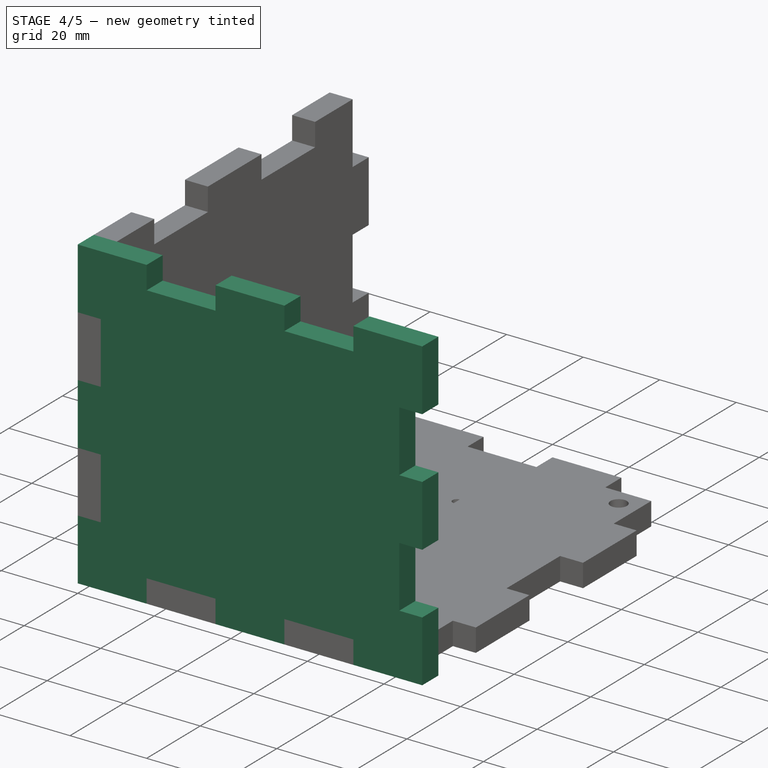
[diagram: stage 4 of 5 — iso view after this stage's code; geometry added in this stage tinted green]
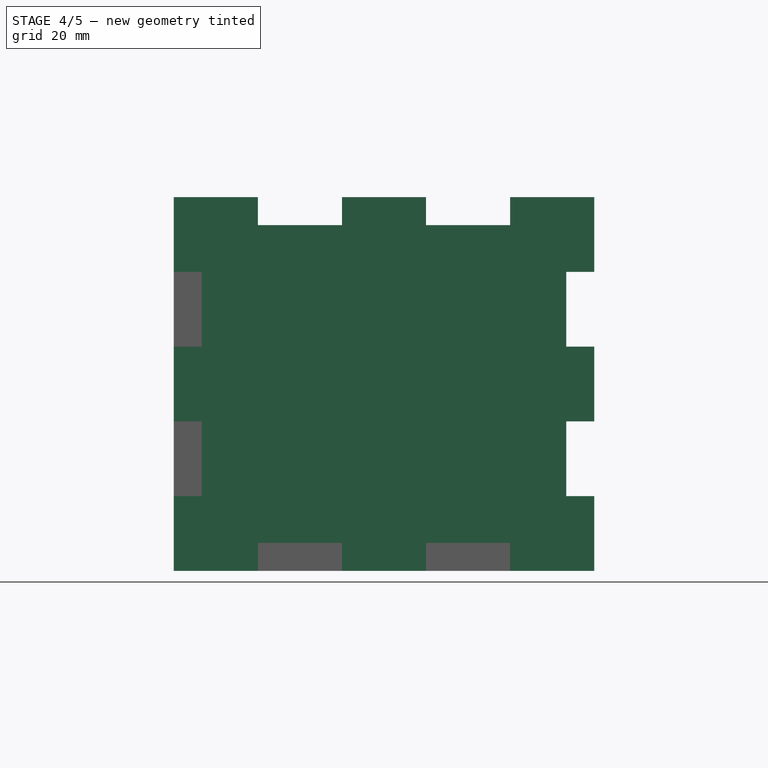
[diagram: stage 4 of 5 — front view after this stage's code; geometry added in this stage tinted green]
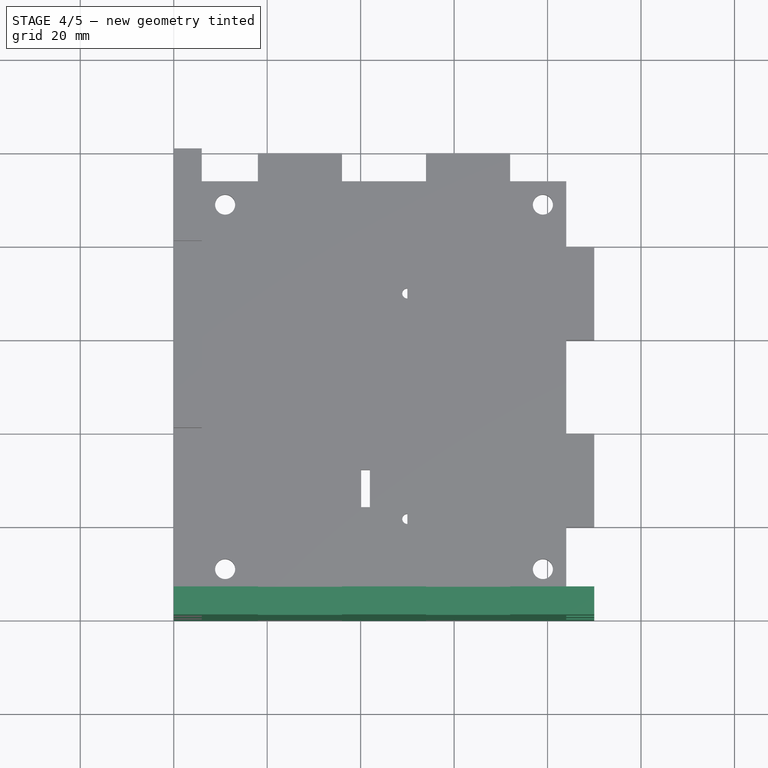
[diagram: stage 4 of 5 — top view after this stage's code; geometry added in this stage tinted green]
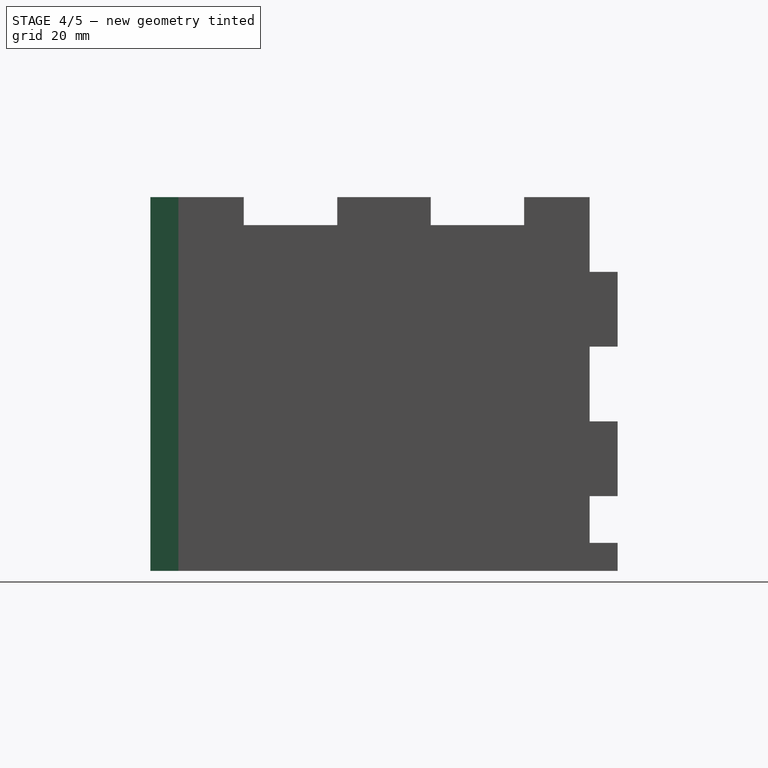
[diagram: stage 4 of 5 — right view after this stage's code; geometry added in this stage tinted green]
FEATURE [PartDesign::Body] Body  label="front_part"
  Group = -> [Sketch,Pad,Sketch001,Pocket]
  Origin = -> Origin
  Tip = -> Pocket
FEATURE [Sketcher::SketchObject] Sketch002  label="rear_base_sketch"
  MapMode = 5
  Placement = pos=(0,0,0) rot=(1,0,0;1.5708rad)
  Support = -> [XZ_Plane001]
  sketch-geometry (4):
    g0: LineSegment StartX=0 StartY=0 StartZ=0 EndX=90 EndY=0 EndZ=0
    g1: LineSegment StartX=90 StartY=0 StartZ=0 EndX=90 EndY=80 EndZ=0
    g2: LineSegment StartX=90 StartY=80 StartZ=0 EndX=0 EndY=80 EndZ=0
    g3: LineSegment StartX=0 StartY=80 StartZ=0 EndX=0 EndY=0 EndZ=0
  constraints (11):
    c: Coincident(g0,g1)
    c: Coincident(g1,g2)
    c: Coincident(g2,g3)
    c: Coincident(g3,g0)
    c: Horizontal(g0)
    c: Horizontal(g2)
    c: Vertical(g1)
    c: Vertical(g3)
    c: Coincident(g0,g-1)
    c: DistanceX(g2,g2) = 90  'Width'
    c: DistanceY(g1,g1) = 80  'Height'
FEATURE [PartDesign::Pad] Pad001  label="rear_base"
  Length = 6
  Length2 = 100
  Placement = pos=(0,0,0) rot=(1,0,0;1.5708rad)
  Profile = -> Sketch002
  Reversed = true
  Type = 0
FEATURE [Sketcher::SketchObject] Sketch003  label="rear_shaped_sketch"
  ExternalGeometry = -> [Pad001]
  MapMode = 5
  Placement = pos=(0,0,0) rot=(1,0,0;1.5708rad)
  Support = -> [Pad001]
  sketch-geometry (32):
    g0: LineSegment StartX=18 StartY=6 StartZ=0 EndX=36 EndY=6 EndZ=0
    g1: LineSegment StartX=36 StartY=6 StartZ=0 EndX=36 EndY=0 EndZ=0
    g2: LineSegment StartX=36 StartY=0 StartZ=0 EndX=18 EndY=0 EndZ=0
    g3: LineSegment StartX=18 StartY=0 StartZ=0 EndX=18 EndY=6 EndZ=0
    g4: LineSegment StartX=54 StartY=6 StartZ=0 EndX=72 EndY=6 EndZ=0
    g5: LineSegment StartX=72 StartY=6 StartZ=0 EndX=72 EndY=0 EndZ=0
    g6: LineSegment StartX=72 StartY=0 StartZ=0 EndX=54 EndY=0 EndZ=0
    g7: LineSegment StartX=54 StartY=0 StartZ=0 EndX=54 EndY=6 EndZ=0
    g8: LineSegment StartX=18 StartY=80 StartZ=0 EndX=36 EndY=80 EndZ=0
    g9: LineSegment StartX=36 StartY=80 StartZ=0 EndX=36 EndY=74 EndZ=0
    g10: LineSegment StartX=36 StartY=74 StartZ=0 EndX=18 EndY=74 EndZ=0
    g11: LineSegment StartX=18 StartY=74 StartZ=0 EndX=18 EndY=80 EndZ=0
    g12: LineSegment StartX=54 StartY=80 StartZ=0 EndX=72 EndY=80 EndZ=0
    g13: LineSegment StartX=72 StartY=80 StartZ=0 EndX=72 EndY=74 EndZ=0
    g14: LineSegment StartX=72 StartY=74 StartZ=0 EndX=54 EndY=74 EndZ=0
    g15: LineSegment StartX=54 StartY=74 StartZ=0 EndX=54 EndY=80 EndZ=0
    g16: LineSegment StartX=0 StartY=32 StartZ=0 EndX=6 EndY=32 EndZ=0
    g17: LineSegment StartX=6 StartY=32 StartZ=0 EndX=6 EndY=16 EndZ=0
    g18: LineSegment StartX=6 StartY=16 StartZ=0 EndX=0 EndY=16 EndZ=0
    g19: LineSegment StartX=0 StartY=16 StartZ=0 EndX=0 EndY=32 EndZ=0
    g20: LineSegment StartX=0 StartY=64 StartZ=0 EndX=6 EndY=64 EndZ=0
    g21: LineSegment StartX=6 StartY=64 StartZ=0 EndX=6 EndY=48 EndZ=0
    g22: LineSegment StartX=6 StartY=48 StartZ=0 EndX=0 EndY=48 EndZ=0
    g23: LineSegment StartX=0 StartY=48 StartZ=0 EndX=0 EndY=64 EndZ=0
    g24: LineSegment StartX=84 StartY=32 StartZ=0 EndX=90 EndY=32 EndZ=0
    g25: LineSegment StartX=90 StartY=32 StartZ=0 EndX=90 EndY=16 EndZ=0
    g26: LineSegment StartX=90 StartY=16 StartZ=0 EndX=84 EndY=16 EndZ=0
    g27: LineSegment StartX=84 StartY=16 StartZ=0 EndX=84 EndY=32 EndZ=0
    g28: LineSegment StartX=84 StartY=64 StartZ=0 EndX=90 EndY=64 EndZ=0
    g29: LineSegment StartX=90 StartY=64 StartZ=0 EndX=90 EndY=48 EndZ=0
    g30: LineSegment StartX=90 StartY=48 StartZ=0 EndX=84 EndY=48 EndZ=0
    g31: LineSegment StartX=84 StartY=48 StartZ=0 EndX=84 EndY=64 EndZ=0
  constraints (96):
    c: Coincident(g0,g1)
    c: Coincident(g1,g2)
    c: Coincident(g2,g3)
    c: Coincident(g3,g0)
    c: Horizontal(g0)
    c: Horizontal(g2)
    c: Vertical(g1)
    c: Vertical(g3)
    c: PointOnObject(g2,g-3)
    c: DistanceX(g-1,g2) = 18
    c: DistanceX(g2,g2) = 18
    c: Distance(g3) = 6
    c: Coincident(g4,g5)
    c: Coincident(g5,g6)
    c: Coincident(g6,g7)
    c: Coincident(g7,g4)
    c: Horizontal(g4)
    c: Horizontal(g6)
    c: Vertical(g5)
    c: Vertical(g7)
    c: PointOnObject(g6,g-3)
    c: DistanceX(g1,g6) = 18
    c: Equal(g6,g2)
    c: Equal(g7,g3)
    c: Coincident(g8,g9)
    c: Coincident(g9,g10)
    c: Coincident(g10,g11)
    c: Coincident(g11,g8)
    c: Horizontal(g8)
    c: Horizontal(g10)
    c: Vertical(g9)
    c: Vertical(g11)
    c: PointOnObject(g8,g-6)
    c: DistanceX(g-6,g8) = 18
    c: Equal(g8,g2)
    c: Equal(g11,g3)
    c: Coincident(g12,g13)
    c: Coincident(g13,g14)
    c: Coincident(g14,g15)
    c: Coincident(g15,g12)
    c: Horizontal(g12)
    c: Horizontal(g14)
    c: Vertical(g13)
    c: Vertical(g15)
    c: PointOnObject(g12,g-6)
    c: DistanceX(g8,g12) = 18
    c: Equal(g12,g2)
    c: Equal(g15,g3)
    c: Coincident(g16,g17)
    c: Coincident(g17,g18)
    c: Coincident(g18,g19)
    c: Coincident(g19,g16)
    c: Horizontal(g16)
    c: Horizontal(g18)
    c: Vertical(g17)
    c: Vertical(g19)
    c: PointOnObject(g18,g-4)
    c: DistanceY(g-1,g18) = 16
    c: DistanceY(g19,g19) = 16
    c: Equal(g18,g3)
    c: Coincident(g20,g21)
    c: Coincident(g21,g22)
    c: Coincident(g22,g23)
    c: Coincident(g23,g20)
    c: Horizontal(g20)
    c: Horizontal(g22)
    c: Vertical(g21)
    c: Vertical(g23)
    c: PointOnObject(g22,g-4)
    c: DistanceY(g16,g22) = 16
    c: Equal(g22,g3)
    c: Equal(g21,g17)
    c: Coincident(g24,g25)
    c: Coincident(g25,g26)
    c: Coincident(g26,g27)
    c: Coincident(g27,g24)
    c: Horizontal(g24)
    c: Horizontal(g26)
    c: Vertical(g25)
    c: Vertical(g27)
    c: PointOnObject(g25,g-5)
    c: DistanceY(g-5,g25) = 16
    c: Equal(g26,g3)
    c: Equal(g25,g19)
    c: Coincident(g28,g29)
    c: Coincident(g29,g30)
    c: Coincident(g30,g31)
    c: Coincident(g31,g28)
    c: Horizontal(g28)
    c: Horizontal(g30)
    c: Vertical(g29)
    c: Vertical(g31)
    c: PointOnObject(g29,g-5)
    c: DistanceY(g24,g29) = 16
    c: Equal(g30,g3)
    c: Equal(g31,g19)
FEATURE [PartDesign::Pocket] Pocket001  label="rear_shaped"
  BaseFeature = -> Pad001
  Length = 5
  Length2 = 100
  Placement = pos=(0,0,0) rot=(1,0,0;1.5708rad)
  Profile = -> Sketch003
  Type = 1
FEATURE [PartDesign::Body] Body001  label="rear_part"
  Group = -> [Sketch002,Pad001,Sketch003,Pocket001,Sketch004,Pocket002]
  Origin = -> Origin001
  Placement = pos=(0,94,0) rot=(0,1,0;0rad)
  Tip = -> Pocket002
FEATURE [Drawing::FeatureViewPart] Ortho  label="front_ortho"
  Direction = (0,-1,0)
  HiddenWidth = 0.15
  LineWidth = 0.35
  Rotation = 90
  ShowHiddenLines = false
  ShowSmoothLines = false
  Source = -> Body
  Tolerance = 0.05
  ViewResult = <g id="front_ortho"\n   transform="rotate(90,103.5,145) translate(103.5,145) scale(1,1)"\n  >\n<g   fill="none"\n   stroke="rgb(0, 0, 0)"\n   stroke-linecap="butt"\n   stroke-linejoin="miter"\n   stroke-width="0.350000"\n   transform="scale(1,-1)"\n  >\n<path id= "1" d=" M 0 0 L 0 18 " />\n<path id= "2" d=" M -16 0 L 0 0 " />\n<path id= "3" d=" M -16 6 L -16 0 " />\n<path id= "4" d=" M -32 6 L -16 6 " />\n<path id= "5" d=" M -32 0 L -32 6 " />\n<path id= "6" d=" M -48 0 L -32 0 " />\n<path id= "7" d=" M -48 6 L -48 0 " />\n<path id= "8" d=" M -64 6 L -48 6 " />\n<path id= "9" d=" M -64 0 L -64 6 " />\n<path id= "10" d=" M -80 0 L -64 0 " />\n<path id= "11" d=" M -80 18 L -80 0 " />\n<path id= "12" d=" M -74 18 L -80 18 " />\n<path id= "13" d=" M -74 36 L -74 18 " />\n<path id= "14" d=" M -80 36 L -74 36 " />\n<path id= "15" d=" M -80 54 L -80 36 " />\n<path id= "16" d=" M -74 54 L -80 54 " />\n<path id= "17" d=" M -74 72 L -74 54 " />\n<path id= "18" d=" M -80 72 L -74 72 " />\n<path id= "19" d=" M -80 90 L -80 72 " />\n<path id= "20" d=" M -64 90 L -80 90 " />\n<path id= "21" d=" M -64 84 L -64 90 " />\n<path id= "22" d=" M -48 84 L -64 84 " />\n<path id= "23" d=" M -48 90 L -48 84 " />\n<path id= "24" d=" M -32 90 L -48 90 " />\n<path id= "25" d=" M -32 84 L -32 90 " />\n<path id= "26" d=" M -16 84 L -32 84 " />\n<path id= "27" d=" M -16 90 L -16 84 " />\n<path id= "28" d=" M 0 90 L -16 90 " />\n<path id= "29" d=" M 0 72 L 0 90 " />\n<path id= "30" d=" M -6 72 L 0 72 " />\n<path id= "31" d=" M -6 54 L -6 72 " />\n<path id= "32" d=" M 0 54 L -6 54 " />\n<path id= "33" d=" M 0 36 L 0 54 " />\n<path id= "34" d=" M -6 36 L 0 36 " />\n<path id= "35" d=" M -6 18 L -6 36 " />\n<path id= "36" d=" M 0 18 L -6 18 " />\n</g>\n</g>
  Visible = true
  X = 103.5
  Y = 145
FEATURE [Drawing::FeaturePage] Page001  label="front_draw"
  Group = -> [Ortho]
  Template = <path>
FEATURE [Drawing::FeatureViewPart] Ortho001  label="rear_ortho"
  Direction = (0,-1,0)
  HiddenWidth = 0.15
  LineWidth = 0.35
  Rotation = 90
  ShowHiddenLines = false
  ShowSmoothLines = false
  Source = -> Body001
  Tolerance = 0.05
  ViewResult = <g id="rear_ortho"\n   transform="rotate(90,103.5,145) translate(103.5,145) scale(1,1)"\n  >\n<g   fill="none"\n   stroke="rgb(0, 0, 0)"\n   stroke-linecap="butt"\n   stroke-linejoin="miter"\n   stroke-width="0.350000"\n   transform="scale(1,-1)"\n  >\n<path id= "1" d=" M 0 0 L 0 18 " />\n<path id= "2" d=" M -16 0 L 0 0 " />\n<path id= "3" d=" M -16 6 L -16 0 " />\n<path id= "4" d=" M -32 6 L -16 6 " />\n<path id= "5" d=" M 0 18 L -6 18 " />\n<path id= "6" d=" M -32 0 L -32 6 " />\n<path id= "7" d=" M -6 18 L -6 36 " />\n<path id= "8" d=" M -48 0 L -32 0 " />\n<path id= "9" d=" M -6 36 L 0 36 " />\n<path id= "10" d=" M -48 6 L -48 0 " />\n<path id= "11" d=" M 0 36 L 0 54 " />\n<path id= "12" d=" M -64 6 L -48 6 " />\n<path id= "13" d=" M 0 54 L -6 54 " />\n<path id= "14" d=" M -64 0 L -64 6 " />\n<path id= "15" d=" M -6 54 L -6 72 " />\n<path id= "16" d=" M -80 0 L -64 0 " />\n<path id= "17" d=" M -6 72 L 0 72 " />\n<path id= "18" d=" M -80 18 L -80 0 " />\n<path id= "19" d=" M 0 72 L 0 90 " />\n<path id= "20" d=" M -74 18 L -80 18 " />\n<path id= "21" d=" M 0 90 L -16 90 " />\n<path id= "22" d=" M -74 36 L -74 18 " />\n<path id= "23" d=" M -16 90 L -16 84 " />\n<path id= "24" d=" M -80 36 L -74 36 " />\n<path id= "25" d=" M -16 84 L -32 84 " />\n<path id= "26" d=" M -80 54 L -80 36 " />\n<path id= "27" d=" M -32 84 L -32 90 " />\n<path id= "28" d=" M -74 54 L -80 54 " />\n<path id= "29" d=" M -32 90 L -48 90 " />\n<path id= "30" d=" M -74 72 L -74 54 " />\n<path id= "31" d=" M -48 90 L -48 84 " />\n<path id= "32" d=" M -80 72 L -74 72 " />\n<path id= "33" d=" M -48 84 L -64 84 " />\n<path id= "34" d=" M -80 90 L -80 72 " />\n<path id= "35" d=" M -64 84 L -64 90 " />\n<path id= "36" d=" M -64 90 L -80 90 " />\n<circle cx ="-40" cy ="45" r ="5" /></g>\n</g>
  Visible = true
  X = 103.5
  Y = 145
FEATURE [Drawing::FeaturePage] Page  label="rear_draw"
  Group = -> [Ortho001]
  Template = <path>
FEATURE [Sketcher::SketchObject] Sketch005  label="left_base_sketch"
  MapMode = 5
  Placement = pos=(0,0,0) rot=(0.57735,0.57735,0.57735;2.0944rad)
  Support = -> [YZ_Plane002]
  sketch-geometry (4):
    g0: LineSegment StartX=0 StartY=80 StartZ=0 EndX=100 EndY=80 EndZ=0
    g1: LineSegment StartX=100 StartY=80 StartZ=0 EndX=100 EndY=0 EndZ=0
    g2: LineSegment StartX=100 StartY=0 StartZ=0 EndX=0 EndY=0 EndZ=0
    g3: LineSegment StartX=0 StartY=0 StartZ=0 EndX=0 EndY=80 EndZ=0
  constraints (11):
    c: Coincident(g0,g1)
    c: Coincident(g1,g2)
    c: Coincident(g2,g3)
    c: Coincident(g3,g0)
    c: Horizontal(g0)
    c: Horizontal(g2)
    c: Vertical(g1)
    c: Vertical(g3)
    c: Coincident(g2,g-1)
    c: DistanceY(g3,g3) = 80
    c: DistanceX(g2,g2) = 100
FEATURE [PartDesign::Pad] Pad002  label="left_base"
  Length = 6
  Length2 = 100
  Placement = pos=(0,0,0) rot=(0.57735,0.57735,0.57735;2.0944rad)
  Profile = -> Sketch005
  Type = 0
FEATURE [Sketcher::SketchObject] Sketch006  label="left_shaped_sketch"
  ExternalGeometry = -> [Pad002]
  MapMode = 5
  Placement = pos=(0,0,0) rot=(0.57735,0.57735,-0.57735;4.18879rad)
  Support = -> [Pad002]
  sketch-geometry (40):
    g0: LineSegment StartX=6 StartY=-16 StartZ=0 EndX=0 EndY=-16 EndZ=0
    g1: LineSegment StartX=0 StartY=-16 StartZ=0 EndX=0 EndY=0 EndZ=0
    g2: LineSegment StartX=0 StartY=0 StartZ=0 EndX=6 EndY=0 EndZ=0
    g3: LineSegment StartX=6 StartY=0 StartZ=0 EndX=6 EndY=-16 EndZ=0
    g4: LineSegment StartX=6 StartY=-48 StartZ=0 EndX=0 EndY=-48 EndZ=0
    g5: LineSegment StartX=0 StartY=-48 StartZ=0 EndX=0 EndY=-32 EndZ=0
    g6: LineSegment StartX=0 StartY=-32 StartZ=0 EndX=6 EndY=-32 EndZ=0
    g7: LineSegment StartX=6 StartY=-32 StartZ=0 EndX=6 EndY=-48 EndZ=0
    g8: LineSegment StartX=6 StartY=-80 StartZ=0 EndX=0 EndY=-80 EndZ=0
    g9: LineSegment StartX=0 StartY=-80 StartZ=0 EndX=0 EndY=-64 EndZ=0
    g10: LineSegment StartX=0 StartY=-64 StartZ=0 EndX=6 EndY=-64 EndZ=0
    g11: LineSegment StartX=6 StartY=-64 StartZ=0 EndX=6 EndY=-80 EndZ=0
    g12: LineSegment StartX=100 StartY=-16 StartZ=0 EndX=94 EndY=-16 EndZ=0
    g13: LineSegment StartX=94 StartY=-16 StartZ=0 EndX=94 EndY=0 EndZ=0
    g14: LineSegment StartX=94 StartY=0 StartZ=0 EndX=100 EndY=0 EndZ=0
    g15: LineSegment StartX=100 StartY=0 StartZ=0 EndX=100 EndY=-16 EndZ=0
    g16: LineSegment StartX=100 StartY=-48 StartZ=0 EndX=94 EndY=-48 EndZ=0
    g17: LineSegment StartX=94 StartY=-48 StartZ=0 EndX=94 EndY=-32 EndZ=0
    g18: LineSegment StartX=94 StartY=-32 StartZ=0 EndX=100 EndY=-32 EndZ=0
    g19: LineSegment StartX=100 StartY=-32 StartZ=0 EndX=100 EndY=-48 EndZ=0
    g20: LineSegment StartX=100 StartY=-80 StartZ=0 EndX=94 EndY=-80 EndZ=0
    g21: LineSegment StartX=94 StartY=-80 StartZ=0 EndX=94 EndY=-64 EndZ=0
    g22: LineSegment StartX=94 StartY=-64 StartZ=0 EndX=100 EndY=-64 EndZ=0
    g23: LineSegment StartX=100 StartY=-64 StartZ=0 EndX=100 EndY=-80 EndZ=0
    g24: LineSegment StartX=20 StartY=-74 StartZ=0 EndX=40 EndY=-74 EndZ=0
    g25: LineSegment StartX=40 StartY=-74 StartZ=0 EndX=40 EndY=-80 EndZ=0
    g26: LineSegment StartX=40 StartY=-80 StartZ=0 EndX=20 EndY=-80 EndZ=0
    g27: LineSegment StartX=20 StartY=-80 StartZ=0 EndX=20 EndY=-74 EndZ=0
    g28: LineSegment StartX=80 StartY=-80 StartZ=0 EndX=60 EndY=-80 EndZ=0
    g29: LineSegment StartX=60 StartY=-80 StartZ=0 EndX=60 EndY=-74 EndZ=0
    g30: LineSegment StartX=60 StartY=-74 StartZ=0 EndX=80 EndY=-74 EndZ=0
    g31: LineSegment StartX=80 StartY=-74 StartZ=0 EndX=80 EndY=-80 EndZ=0
    g32: LineSegment StartX=40 StartY=-6 StartZ=0 EndX=20 EndY=-6 EndZ=0
    g33: LineSegment StartX=20 StartY=-6 StartZ=0 EndX=20 EndY=0 EndZ=0
    g34: LineSegment StartX=20 StartY=0 StartZ=0 EndX=40 EndY=0 EndZ=0
    g35: LineSegment StartX=40 StartY=0 StartZ=0 EndX=40 EndY=-6 EndZ=0
    g36: LineSegment StartX=80 StartY=-6 StartZ=0 EndX=60 EndY=-6 EndZ=0
    g37: LineSegment StartX=60 StartY=-6 StartZ=0 EndX=60 EndY=0 EndZ=0
    g38: LineSegment StartX=60 StartY=0 StartZ=0 EndX=80 EndY=0 EndZ=0
    g39: LineSegment StartX=80 StartY=0 StartZ=0 EndX=80 EndY=-6 EndZ=0
  constraints (117):
    c: Coincident(g0,g1)
    c: Coincident(g1,g2)
    c: Coincident(g2,g3)
    c: Coincident(g3,g0)
    c: Horizontal(g0)
    c: Horizontal(g2)
    c: Vertical(g1)
    c: Vertical(g3)
    c: Coincident(g1,g-1)
    c: DistanceY(g1,g1) = 16
    c: DistanceX(g2,g2) = 6
    c: Coincident(g4,g5)
    c: Coincident(g5,g6)
    c: Coincident(g6,g7)
    c: Coincident(g7,g4)
    c: Horizontal(g4)
    c: Horizontal(g6)
    c: Vertical(g5)
    c: Vertical(g7)
    c: PointOnObject(g5,g-3)
    c: DistanceY(g5,g0) = 16
    c: DistanceY(g5,g5) = 16
    c: DistanceX(g6,g6) = 6
    c: Coincident(g8,g9)
    c: Coincident(g9,g10)
    c: Coincident(g10,g11)
    c: Coincident(g11,g8)
    c: Horizontal(g8)
    c: Horizontal(g10)
    c: Vertical(g9)
    c: Vertical(g11)
    c: PointOnObject(g9,g-3)
    c: Coincident(g8,g-3)
    c: DistanceY(g9,g4) = 16
    c: DistanceX(g10,g10) = 6
    c: Coincident(g12,g13)
    c: Coincident(g13,g14)
    c: Coincident(g14,g15)
    c: Coincident(g15,g12)
    c: Horizontal(g12)
    c: Horizontal(g14)
    c: Vertical(g13)
    c: Vertical(g15)
    c: Coincident(g14,g-5)
    c: DistanceY(g15,g15) = 16
    c: DistanceX(g14,g14) = 6
    c: Coincident(g16,g17)
    c: Coincident(g17,g18)
    c: Coincident(g18,g19)
    c: Coincident(g19,g16)
    c: Horizontal(g16)
    c: Horizontal(g18)
    c: Vertical(g17)
    c: Vertical(g19)
    c: PointOnObject(g18,g-5)
    c: DistanceY(g18,g12) = 16
    c: DistanceY(g19,g19) = 16
    c: DistanceX(g18,g18) = 6
    c: Coincident(g20,g21)
    c: Coincident(g21,g22)
    c: Coincident(g22,g23)
    c: Coincident(g23,g20)
    c: Horizontal(g20)
    c: Horizontal(g22)
    c: Vertical(g21)
    c: Vertical(g23)
    c: Coincident(g20,g-6)
    c: DistanceY(g22,g16) = 16
    c: DistanceX(g22,g22) = 6
    c: Coincident(g24,g25)
    c: Coincident(g25,g26)
    c: Coincident(g26,g27)
    c: Coincident(g27,g24)
    c: Horizontal(g24)
    c: Horizontal(g26)
    c: Vertical(g25)
    c: Vertical(g27)
    c: PointOnObject(g26,g-6)
    c: DistanceX(g8,g26) = 20
    c: DistanceX(g26,g26) = 20
    c: DistanceY(g27,g27) = 6
    c: Coincident(g28,g29)
    c: Coincident(g29,g30)
    c: Coincident(g30,g31)
    c: Coincident(g31,g28)
    c: Horizontal(g28)
    c: Horizontal(g30)
    c: Vertical(g29)
    c: Vertical(g31)
    c: PointOnObject(g28,g-6)
    c: DistanceX(g28,g20) = 20
    c: DistanceX(g28,g28) = 20
    c: DistanceY(g31,g31) = 6
    c: Coincident(g32,g33)
    c: Coincident(g33,g34)
    c: Coincident(g34,g35)
    c: Coincident(g35,g32)
    c: Horizontal(g32)
    c: Horizontal(g34)
    c: Vertical(g33)
    c: Vertical(g35)
    c: PointOnObject(g33,g-4)
    c: DistanceX(g-1,g33) = 20
    c: DistanceX(g34,g34) = 20
    c: DistanceY(g33,g33) = 6
    c: Coincident(g36,g37)
    c: Coincident(g37,g38)
    c: Coincident(g38,g39)
    c: Coincident(g39,g36)
    c: Horizontal(g36)
    c: Horizontal(g38)
    c: Vertical(g37)
    c: Vertical(g39)
    c: PointOnObject(g38,g-4)
    c: DistanceX(g38,g14) = 20
    c: DistanceX(g38,g38) = 20
    c: DistanceY(g37,g37) = 6
FEATURE [PartDesign::Pocket] Pocket003  label="left_shaped"
  BaseFeature = -> Pad002
  Length = 5
  Length2 = 100
  Placement = pos=(0,0,0) rot=(0.57735,0.57735,0.57735;2.0944rad)
  Profile = -> Sketch006
  Type = 1
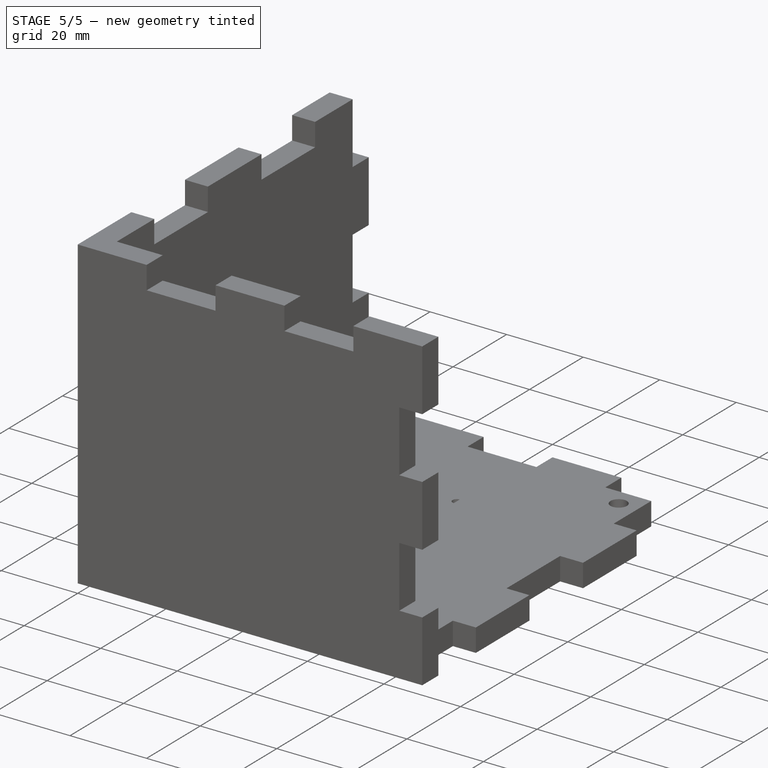
[diagram: stage 5 of 5 — iso view after this stage's code; geometry added in this stage tinted green]
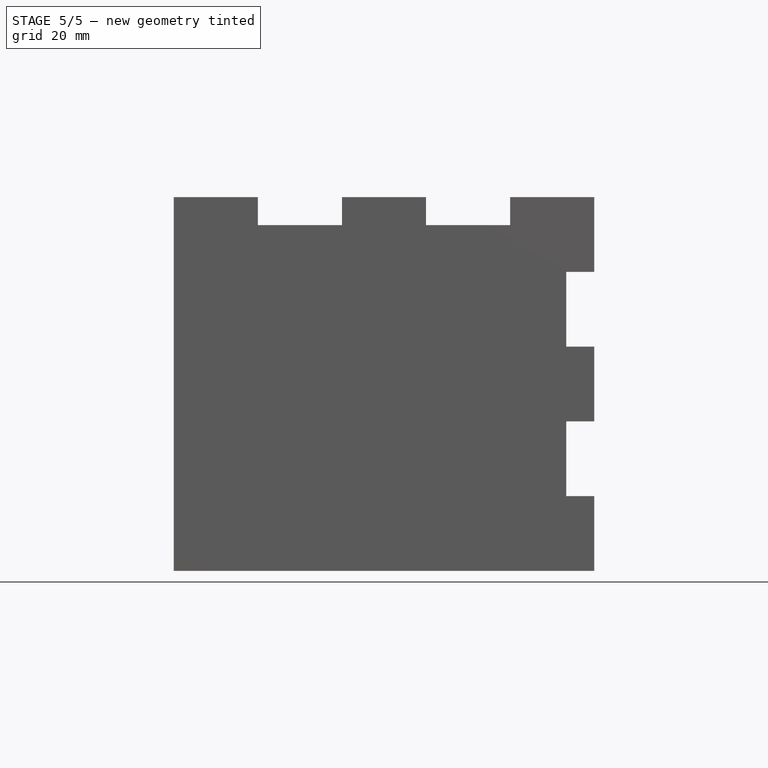
[diagram: stage 5 of 5 — front view after this stage's code; geometry added in this stage tinted green]
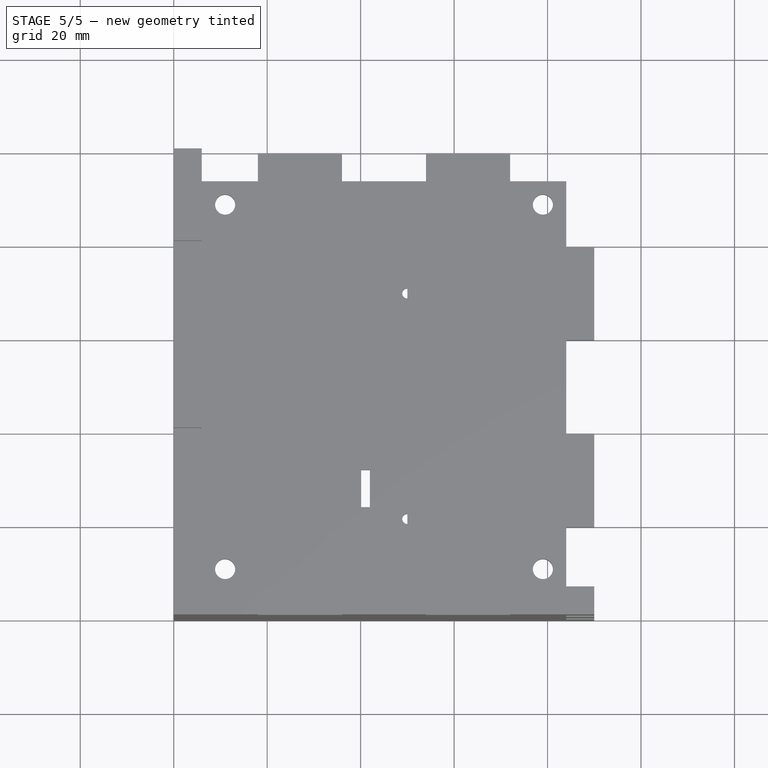
[diagram: stage 5 of 5 — top view after this stage's code; geometry added in this stage tinted green]
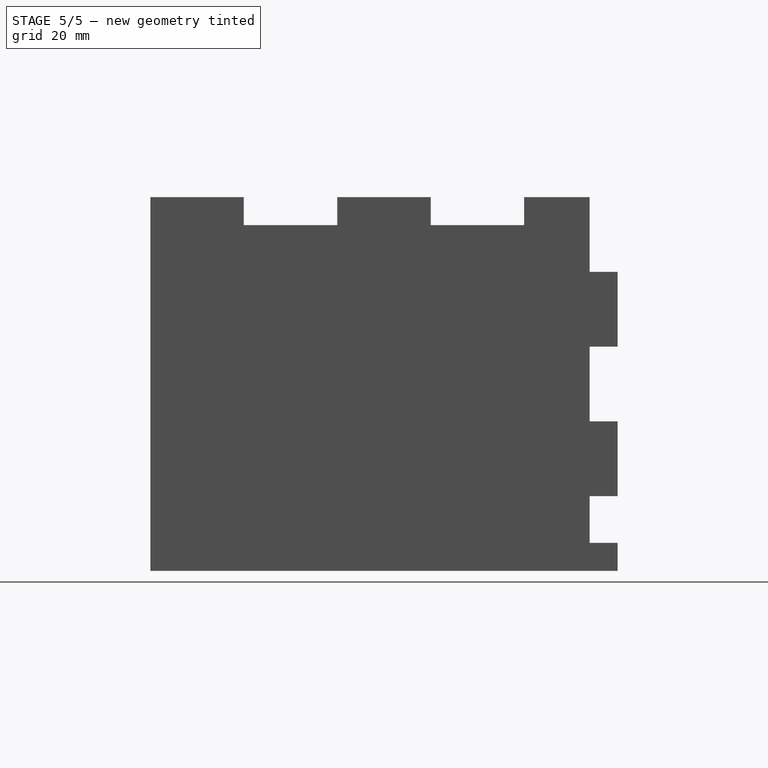
[diagram: stage 5 of 5 — right view after this stage's code; geometry added in this stage tinted green]
FEATURE [Sketcher::SketchObject] Sketch  label="front_base_sketch"
  MapMode = 5
  Placement = pos=(0,0,0) rot=(1,0,0;1.5708rad)
  Support = -> [XZ_Plane]
  sketch-geometry (4):
    g0: LineSegment StartX=0 StartY=0 StartZ=0 EndX=90 EndY=0 EndZ=0
    g1: LineSegment StartX=90 StartY=0 StartZ=0 EndX=90 EndY=80 EndZ=0
    g2: LineSegment StartX=90 StartY=80 StartZ=0 EndX=0 EndY=80 EndZ=0
    g3: LineSegment StartX=0 StartY=80 StartZ=0 EndX=0 EndY=0 EndZ=0
  constraints (11):
    c: Coincident(g0,g1)
    c: Coincident(g1,g2)
    c: Coincident(g2,g3)
    c: Coincident(g3,g0)
    c: Horizontal(g0)
    c: Horizontal(g2)
    c: Vertical(g1)
    c: Vertical(g3)
    c: Coincident(g0,g-1)
    c: DistanceX(g2,g2) = 90  'Width'
    c: DistanceY(g1,g1) = 80  'Height'
FEATURE [PartDesign::Pad] Pad  label="front_base"
  Length = 6
  Length2 = 100
  Placement = pos=(0,0,0) rot=(1,0,0;1.5708rad)
  Profile = -> Sketch
  Reversed = true
  Type = 0
FEATURE [Sketcher::SketchObject] Sketch001  label="front_shaped_sketch"
  ExternalGeometry = -> [Pad]
  MapMode = 5
  Placement = pos=(0,0,0) rot=(1,0,0;1.5708rad)
  Support = -> [Pad]
  sketch-geometry (32):
    g0: LineSegment StartX=18 StartY=6 StartZ=0 EndX=36 EndY=6 EndZ=0
    g1: LineSegment StartX=36 StartY=6 StartZ=0 EndX=36 EndY=0 EndZ=0
    g2: LineSegment StartX=36 StartY=0 StartZ=0 EndX=18 EndY=0 EndZ=0
    g3: LineSegment StartX=18 StartY=0 StartZ=0 EndX=18 EndY=6 EndZ=0
    g4: LineSegment StartX=54 StartY=6 StartZ=0 EndX=72 EndY=6 EndZ=0
    g5: LineSegment StartX=72 StartY=6 StartZ=0 EndX=72 EndY=0 EndZ=0
    g6: LineSegment StartX=72 StartY=0 StartZ=0 EndX=54 EndY=0 EndZ=0
    g7: LineSegment StartX=54 StartY=0 StartZ=0 EndX=54 EndY=6 EndZ=0
    g8: LineSegment StartX=18 StartY=80 StartZ=0 EndX=36 EndY=80 EndZ=0
    g9: LineSegment StartX=36 StartY=80 StartZ=0 EndX=36 EndY=74 EndZ=0
    g10: LineSegment StartX=36 StartY=74 StartZ=0 EndX=18 EndY=74 EndZ=0
    g11: LineSegment StartX=18 StartY=74 StartZ=0 EndX=18 EndY=80 EndZ=0
    g12: LineSegment StartX=54 StartY=80 StartZ=0 EndX=72 EndY=80 EndZ=0
    g13: LineSegment StartX=72 StartY=80 StartZ=0 EndX=72 EndY=74 EndZ=0
    g14: LineSegment StartX=72 StartY=74 StartZ=0 EndX=54 EndY=74 EndZ=0
    g15: LineSegment StartX=54 StartY=74 StartZ=0 EndX=54 EndY=80 EndZ=0
    g16: LineSegment StartX=0 StartY=32 StartZ=0 EndX=6 EndY=32 EndZ=0
    g17: LineSegment StartX=6 StartY=32 StartZ=0 EndX=6 EndY=16 EndZ=0
    g18: LineSegment StartX=6 StartY=16 StartZ=0 EndX=0 EndY=16 EndZ=0
    g19: LineSegment StartX=0 StartY=16 StartZ=0 EndX=0 EndY=32 EndZ=0
    g20: LineSegment StartX=0 StartY=64 StartZ=0 EndX=6 EndY=64 EndZ=0
    g21: LineSegment StartX=6 StartY=64 StartZ=0 EndX=6 EndY=48 EndZ=0
    g22: LineSegment StartX=6 StartY=48 StartZ=0 EndX=0 EndY=48 EndZ=0
    g23: LineSegment StartX=0 StartY=48 StartZ=0 EndX=0 EndY=64 EndZ=0
    g24: LineSegment StartX=84 StartY=32 StartZ=0 EndX=90 EndY=32 EndZ=0
    g25: LineSegment StartX=90 StartY=32 StartZ=0 EndX=90 EndY=16 EndZ=0
    g26: LineSegment StartX=90 StartY=16 StartZ=0 EndX=84 EndY=16 EndZ=0
    g27: LineSegment StartX=84 StartY=16 StartZ=0 EndX=84 EndY=32 EndZ=0
    g28: LineSegment StartX=84 StartY=64 StartZ=0 EndX=90 EndY=64 EndZ=0
    g29: LineSegment StartX=90 StartY=64 StartZ=0 EndX=90 EndY=48 EndZ=0
    g30: LineSegment StartX=90 StartY=48 StartZ=0 EndX=84 EndY=48 EndZ=0
    g31: LineSegment StartX=84 StartY=48 StartZ=0 EndX=84 EndY=64 EndZ=0
  constraints (96):
    c: Coincident(g0,g1)
    c: Coincident(g1,g2)
    c: Coincident(g2,g3)
    c: Coincident(g3,g0)
    c: Horizontal(g0)
    c: Horizontal(g2)
    c: Vertical(g1)
    c: Vertical(g3)
    c: PointOnObject(g2,g-3)
    c: DistanceX(g-1,g2) = 18
    c: DistanceX(g2,g2) = 18
    c: Distance(g3) = 6
    c: Coincident(g4,g5)
    c: Coincident(g5,g6)
    c: Coincident(g6,g7)
    c: Coincident(g7,g4)
    c: Horizontal(g4)
    c: Horizontal(g6)
    c: Vertical(g5)
    c: Vertical(g7)
    c: PointOnObject(g6,g-3)
    c: DistanceX(g1,g6) = 18
    c: Equal(g6,g2)
    c: Equal(g7,g3)
    c: Coincident(g8,g9)
    c: Coincident(g9,g10)
    c: Coincident(g10,g11)
    c: Coincident(g11,g8)
    c: Horizontal(g8)
    c: Horizontal(g10)
    c: Vertical(g9)
    c: Vertical(g11)
    c: PointOnObject(g8,g-6)
    c: DistanceX(g-6,g8) = 18
    c: Equal(g8,g2)
    c: Equal(g11,g3)
    c: Coincident(g12,g13)
    c: Coincident(g13,g14)
    c: Coincident(g14,g15)
    c: Coincident(g15,g12)
    c: Horizontal(g12)
    c: Horizontal(g14)
    c: Vertical(g13)
    c: Vertical(g15)
    c: PointOnObject(g12,g-6)
    c: DistanceX(g8,g12) = 18
    c: Equal(g12,g2)
    c: Equal(g15,g3)
    c: Coincident(g16,g17)
    c: Coincident(g17,g18)
    c: Coincident(g18,g19)
    c: Coincident(g19,g16)
    c: Horizontal(g16)
    c: Horizontal(g18)
    c: Vertical(g17)
    c: Vertical(g19)
    c: PointOnObject(g18,g-4)
    c: DistanceY(g-1,g18) = 16
    c: DistanceY(g19,g19) = 16
    c: Equal(g18,g3)
    c: Coincident(g20,g21)
    c: Coincident(g21,g22)
    c: Coincident(g22,g23)
    c: Coincident(g23,g20)
    c: Horizontal(g20)
    c: Horizontal(g22)
    c: Vertical(g21)
    c: Vertical(g23)
    c: PointOnObject(g22,g-4)
    c: DistanceY(g16,g22) = 16
    c: Equal(g22,g3)
    c: Equal(g21,g17)
    c: Coincident(g24,g25)
    c: Coincident(g25,g26)
    c: Coincident(g26,g27)
    c: Coincident(g27,g24)
    c: Horizontal(g24)
    c: Horizontal(g26)
    c: Vertical(g25)
    c: Vertical(g27)
    c: PointOnObject(g25,g-5)
    c: DistanceY(g-5,g25) = 16
    c: Equal(g26,g3)
    c: Equal(g25,g19)
    c: Coincident(g28,g29)
    c: Coincident(g29,g30)
    c: Coincident(g30,g31)
    c: Coincident(g31,g28)
    c: Horizontal(g28)
    c: Horizontal(g30)
    c: Vertical(g29)
    c: Vertical(g31)
    c: PointOnObject(g29,g-5)
    c: DistanceY(g24,g29) = 16
    c: Equal(g30,g3)
    c: Equal(g31,g19)
FEATURE [PartDesign::Pocket] Pocket  label="front_shaped"
  BaseFeature = -> Pad
  Length = 5
  Length2 = 100
  Placement = pos=(0,0,0) rot=(1,0,0;1.5708rad)
  Profile = -> Sketch001
  Type = 1
FEATURE [Sketcher::SketchObject] Sketch004
  MapMode = 5
  Placement = pos=(0,0,0) rot=(1,0,0;1.5708rad)
  Support = -> [Pocket001]
  sketch-geometry (1):
    g0: Circle CenterX=45 CenterY=40 CenterZ=0 NormalX=0 NormalY=0 NormalZ=1 AngleXU=0 Radius=5
  constraints (3):
    c: DistanceX(g-1,g0) = 45
    c: DistanceY(g-1,g0) = 40
    c: Radius(g0) = 5
FEATURE [PartDesign::Pocket] Pocket002  label="rear_drilled"
  BaseFeature = -> Pocket001
  Length = 5
  Length2 = 100
  Placement = pos=(0,0,0) rot=(1,0,0;1.5708rad)
  Profile = -> Sketch004
  Type = 1
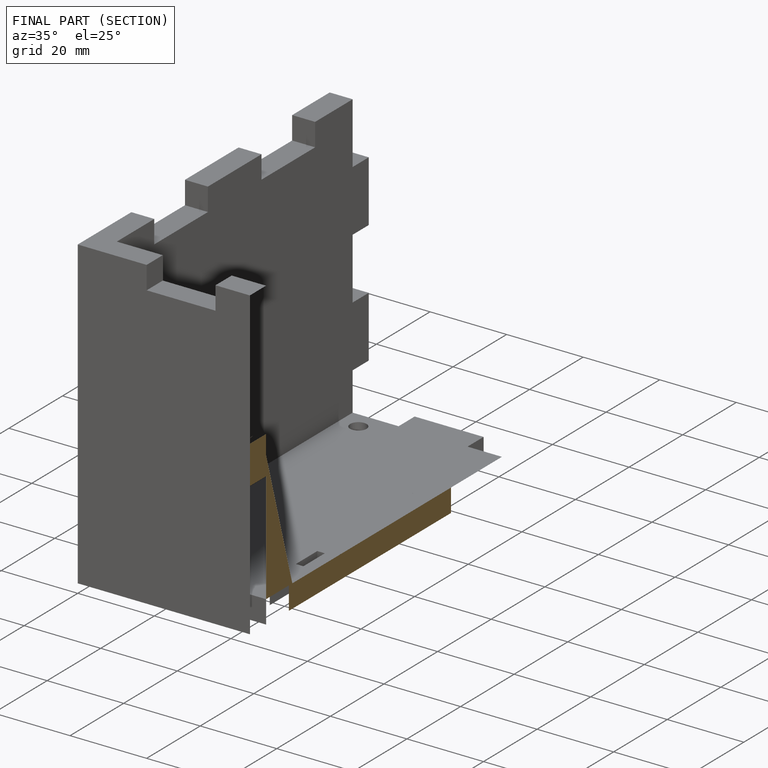
[diagram: finished part — half-section view (interior)]
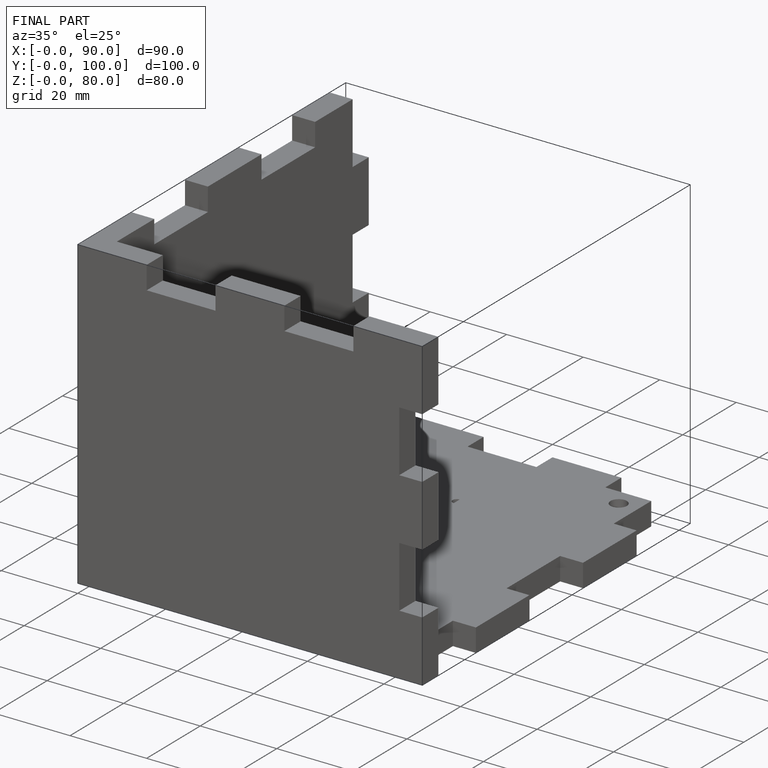
[diagram: finished part — iso view with bounding-box wireframe]
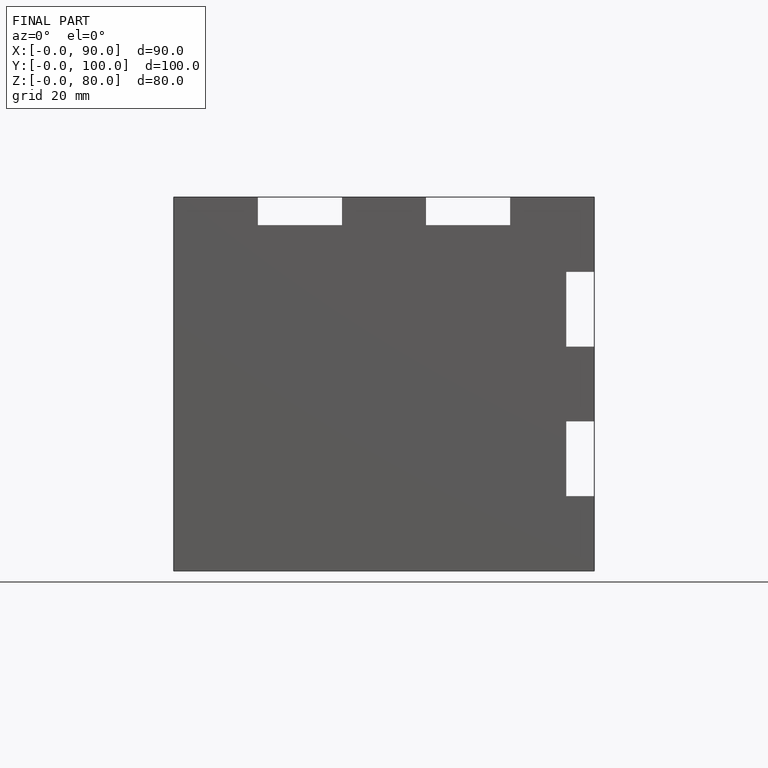
[diagram: finished part — front view with bounding-box wireframe]
